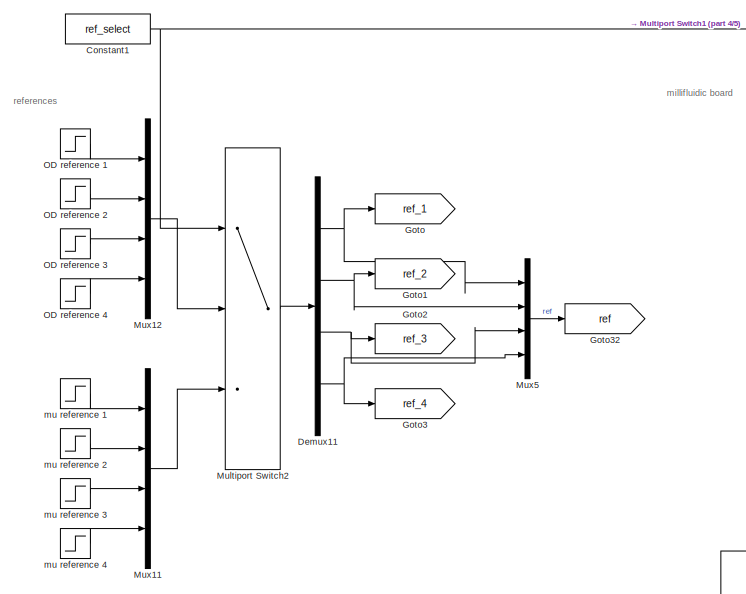
[diagram: root canvas - part 1/5, top left region]
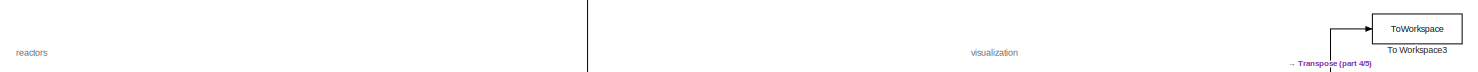
[diagram: root canvas - part 2/5, top right region]
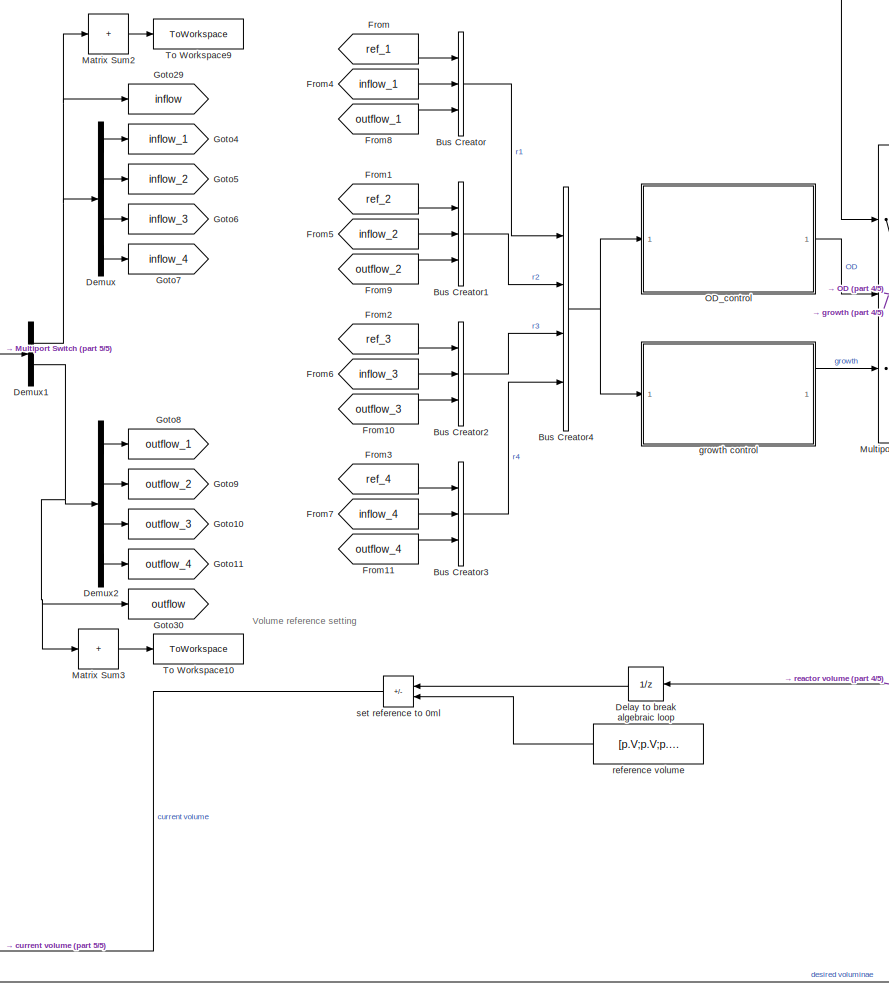
[diagram: root canvas - part 3/5, center side, full height]
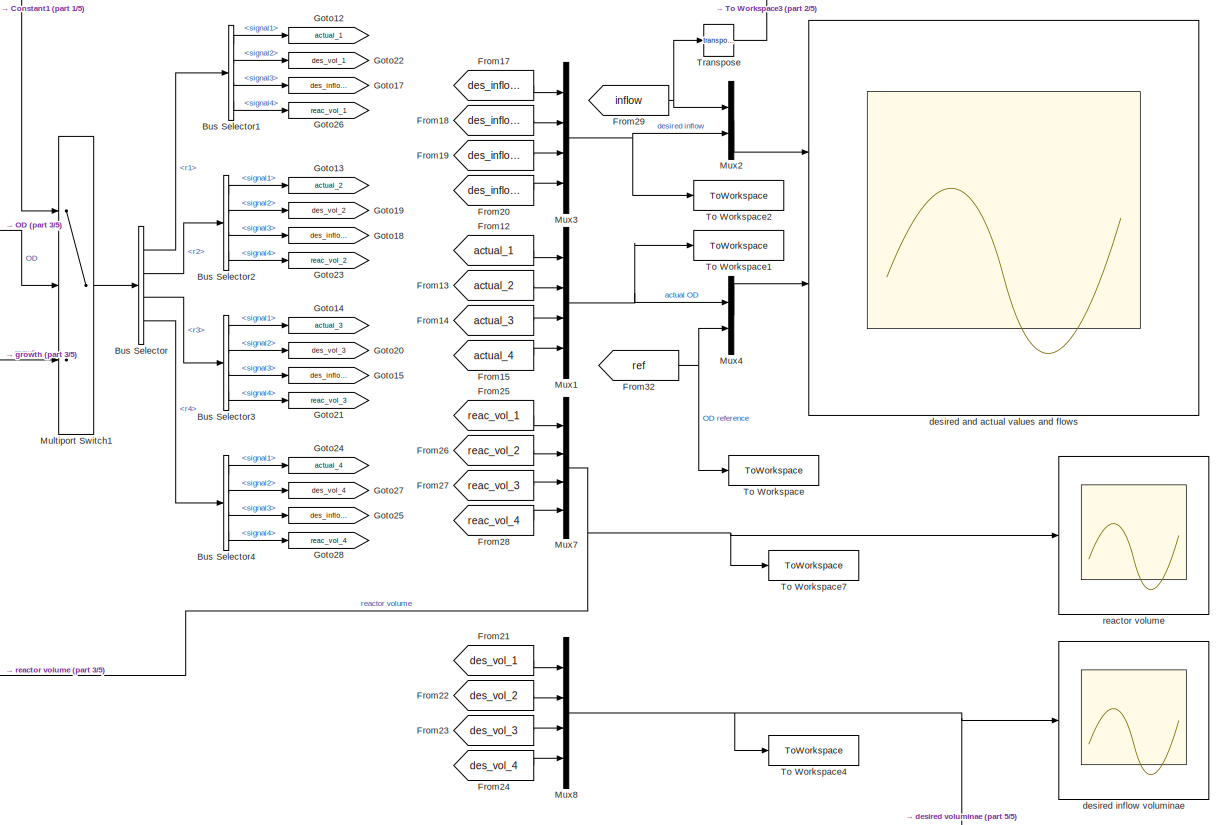
[diagram: root canvas - part 4/5, middle right region]
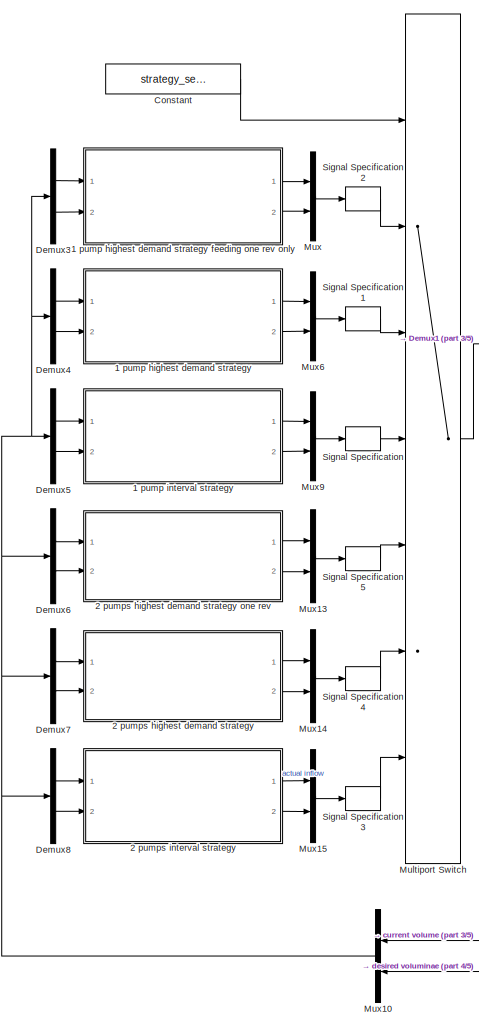
[diagram: root canvas - part 5/5, left side, full height]
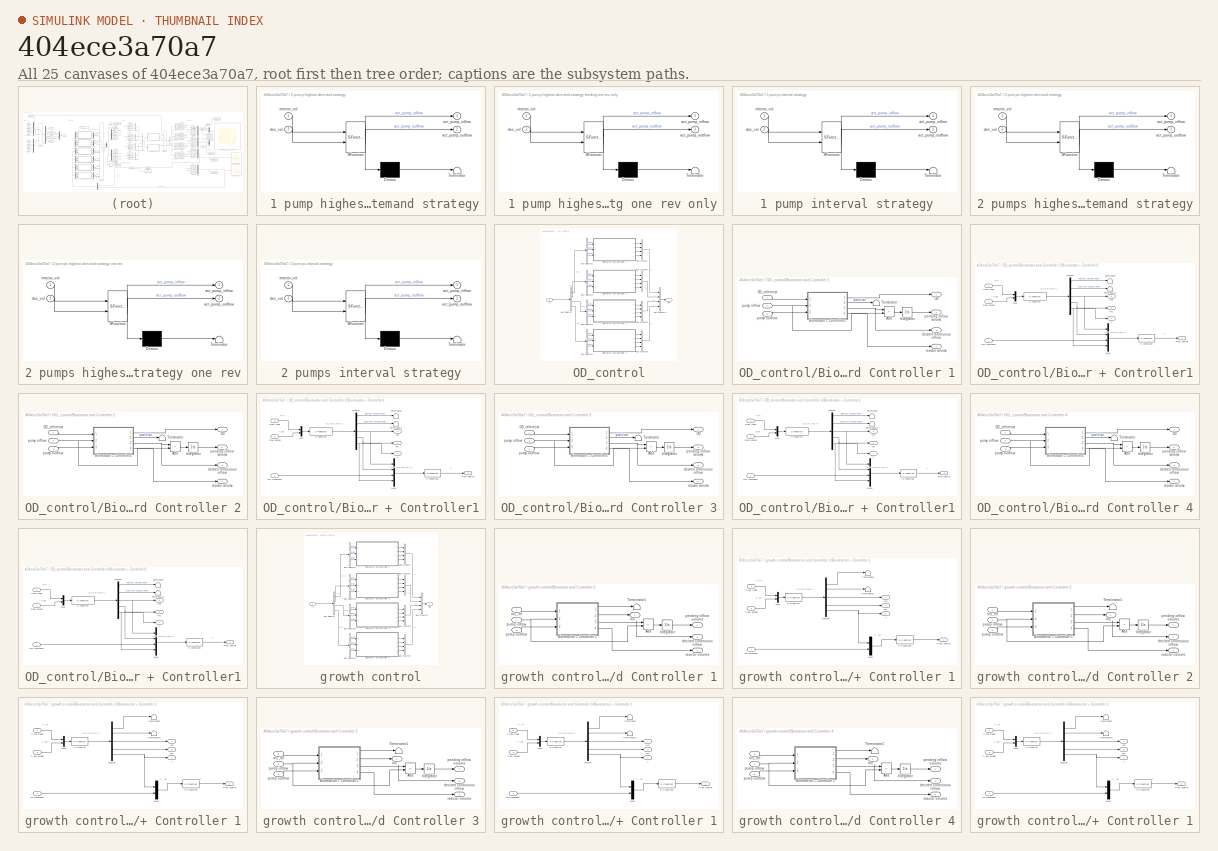
[diagram: thumbnail index - all 25 canvases of the model, root first then tree order]
MODEL slx_404ece3a70a7
KIND model
CONFIG AbsTol = 1e-6
CONFIG EnableMultiTasking = off
CONFIG FixedStep = 0.001
CONFIG MaxStep = 1
CONFIG MinStep = auto
CONFIG RelTol = 1e-3
CONFIG SampleTimeConstraint = Unconstrained
CONFIG SolverName = FixedStepAuto
CONFIG StartTime = 0.0
CONFIG StopTime = stoptime
BLOCK [SubSystem]  1 pump highest demand strategy
  ErrorFcn = Stateflow.Translate.translate
  PermitHierarchicalResolution = ExplicitOnly
  Ports = [2, 2]
  RequestExecContextInheritance = off
  SFBlockType = Chart
  TreatAsAtomicUnit = on
BLOCK [SubSystem]  1 pump highest demand strategy feeding one rev only
  ErrorFcn = Stateflow.Translate.translate
  PermitHierarchicalResolution = ExplicitOnly
  Ports = [2, 2]
  RequestExecContextInheritance = off
  SFBlockType = Chart
  TreatAsAtomicUnit = on
BLOCK [Demux]  1 pump highest demand strategy feeding one rev only/ Demux 
  Outputs = 1
  Ports = [1, 1]
BLOCK [S-Function]  1 pump highest demand strategy feeding one rev only/ SFunction 
  EnableBusSupport = on
  FunctionName = sf_sfun
  Parameters = p
  PortCounts = [2 3]
  Ports = [2, 3]
  SFcnIsStateOwnerBlock = off
  SFunctionDeploymentMode = off
  Tag = Stateflow S-Function 3
BLOCK [Terminator]  1 pump highest demand strategy feeding one rev only/ Terminator 
BLOCK [Outport]  1 pump highest demand strategy feeding one rev only/act_pump_inflow
BLOCK [Outport]  1 pump highest demand strategy feeding one rev only/act_pump_outflow
  Port = 2
BLOCK [Inport]  1 pump highest demand strategy feeding one rev only/des_vol
  Port = 2
BLOCK [Inport]  1 pump highest demand strategy feeding one rev only/reactor_vol
BLOCK [Demux]  1 pump highest demand strategy/ Demux 
  Outputs = 1
  Ports = [1, 1]
BLOCK [S-Function]  1 pump highest demand strategy/ SFunction 
  EnableBusSupport = on
  FunctionName = sf_sfun
  Parameters = p
  PortCounts = [2 3]
  Ports = [2, 3]
  SFcnIsStateOwnerBlock = off
  SFunctionDeploymentMode = off
  Tag = Stateflow S-Function 2
BLOCK [Terminator]  1 pump highest demand strategy/ Terminator 
BLOCK [Outport]  1 pump highest demand strategy/act_pump_inflow
BLOCK [Outport]  1 pump highest demand strategy/act_pump_outflow
  Port = 2
BLOCK [Inport]  1 pump highest demand strategy/des_vol
  Port = 2
BLOCK [Inport]  1 pump highest demand strategy/reactor_vol
BLOCK [SubSystem] 1 pump interval strategy
  ErrorFcn = Stateflow.Translate.translate
  PermitHierarchicalResolution = ExplicitOnly
  Ports = [2, 2]
  RequestExecContextInheritance = off
  SFBlockType = Chart
  TreatAsAtomicUnit = on
BLOCK [Demux] 1 pump interval strategy/ Demux 
  Outputs = 1
  Ports = [1, 1]
BLOCK [S-Function] 1 pump interval strategy/ SFunction 
  EnableBusSupport = on
  FunctionName = sf_sfun
  Parameters = p
  PortCounts = [2 3]
  Ports = [2, 3]
  SFcnIsStateOwnerBlock = off
  SFunctionDeploymentMode = off
  Tag = Stateflow S-Function 1
BLOCK [Terminator] 1 pump interval strategy/ Terminator 
BLOCK [Outport] 1 pump interval strategy/act_pump_inflow
BLOCK [Outport] 1 pump interval strategy/act_pump_outflow
  Port = 2
BLOCK [Inport] 1 pump interval strategy/des_vol
  Port = 2
BLOCK [Inport] 1 pump interval strategy/reactor_vol
BLOCK [SubSystem] 2 pumps highest demand strategy
  ErrorFcn = Stateflow.Translate.translate
  PermitHierarchicalResolution = ExplicitOnly
  Ports = [2, 2]
  RequestExecContextInheritance = off
  SFBlockType = Chart
  TreatAsAtomicUnit = on
BLOCK [SubSystem] 2 pumps highest demand strategy one rev
  ErrorFcn = Stateflow.Translate.translate
  PermitHierarchicalResolution = ExplicitOnly
  Ports = [2, 2]
  RequestExecContextInheritance = off
  SFBlockType = Chart
  TreatAsAtomicUnit = on
BLOCK [Demux] 2 pumps highest demand strategy one rev/ Demux 
  Outputs = 1
  Ports = [1, 1]
BLOCK [S-Function] 2 pumps highest demand strategy one rev/ SFunction 
  EnableBusSupport = on
  FunctionName = sf_sfun
  Parameters = p
  PortCounts = [2 3]
  Ports = [2, 3]
  SFcnIsStateOwnerBlock = off
  SFunctionDeploymentMode = off
  Tag = Stateflow S-Function 4
BLOCK [Terminator] 2 pumps highest demand strategy one rev/ Terminator 
BLOCK [Outport] 2 pumps highest demand strategy one rev/act_pump_inflow
BLOCK [Outport] 2 pumps highest demand strategy one rev/act_pump_outflow
  Port = 2
BLOCK [Inport] 2 pumps highest demand strategy one rev/des_vol
  Port = 2
BLOCK [Inport] 2 pumps highest demand strategy one rev/reactor_vol
BLOCK [Demux] 2 pumps highest demand strategy/ Demux 
  Outputs = 1
  Ports = [1, 1]
BLOCK [S-Function] 2 pumps highest demand strategy/ SFunction 
  EnableBusSupport = on
  FunctionName = sf_sfun
  Parameters = p
  PortCounts = [2 3]
  Ports = [2, 3]
  SFcnIsStateOwnerBlock = off
  SFunctionDeploymentMode = off
  Tag = Stateflow S-Function 5
BLOCK [Terminator] 2 pumps highest demand strategy/ Terminator 
BLOCK [Outport] 2 pumps highest demand strategy/act_pump_inflow
BLOCK [Outport] 2 pumps highest demand strategy/act_pump_outflow
  Port = 2
BLOCK [Inport] 2 pumps highest demand strategy/des_vol
  Port = 2
BLOCK [Inport] 2 pumps highest demand strategy/reactor_vol
BLOCK [SubSystem] 2 pumps interval strategy
  ErrorFcn = Stateflow.Translate.translate
  PermitHierarchicalResolution = ExplicitOnly
  Ports = [2, 2]
  RequestExecContextInheritance = off
  SFBlockType = Chart
  TreatAsAtomicUnit = on
BLOCK [Demux] 2 pumps interval strategy/ Demux 
  Outputs = 1
  Ports = [1, 1]
BLOCK [S-Function] 2 pumps interval strategy/ SFunction 
  EnableBusSupport = on
  FunctionName = sf_sfun
  Parameters = p
  PortCounts = [2 3]
  Ports = [2, 3]
  SFcnIsStateOwnerBlock = off
  SFunctionDeploymentMode = off
  Tag = Stateflow S-Function 6
BLOCK [Terminator] 2 pumps interval strategy/ Terminator 
BLOCK [Outport] 2 pumps interval strategy/act_pump_inflow
BLOCK [Outport] 2 pumps interval strategy/act_pump_outflow
  Port = 2
BLOCK [Inport] 2 pumps interval strategy/des_vol
  Port = 2
BLOCK [Inport] 2 pumps interval strategy/reactor_vol
BLOCK [BusCreator] Bus Creator
  DisplayOption = bar
  InheritFromInputs = on
  Inputs = 3
  Ports = [3, 1]
BLOCK [BusCreator] Bus Creator1
  DisplayOption = bar
  InheritFromInputs = on
  Inputs = 3
  Ports = [3, 1]
BLOCK [BusCreator] Bus Creator2
  DisplayOption = bar
  InheritFromInputs = on
  Inputs = 3
  Ports = [3, 1]
BLOCK [BusCreator] Bus Creator3
  DisplayOption = bar
  InheritFromInputs = on
  Inputs = 3
  Ports = [3, 1]
BLOCK [BusCreator] Bus Creator4
  DisplayOption = bar
  InheritFromInputs = on
  Inputs = 4
  Ports = [4, 1]
BLOCK [BusSelector] Bus Selector
  OutputSignals = r1,r2,r3,r4
  Ports = [1, 4]
BLOCK [BusSelector] Bus Selector1
  OutputSignals = signal1,signal2,signal3,signal4
  Ports = [1, 4]
BLOCK [BusSelector] Bus Selector2
  OutputSignals = signal1,signal2,signal3,signal4
  Ports = [1, 4]
BLOCK [BusSelector] Bus Selector3
  OutputSignals = signal1,signal2,signal3,signal4
  Ports = [1, 4]
BLOCK [BusSelector] Bus Selector4
  OutputSignals = signal1,signal2,signal3,signal4
  Ports = [1, 4]
BLOCK [Constant] Constant
  Value = strategy_select
BLOCK [Constant] Constant1
  Value = ref_select
BLOCK [UnitDelay] Delay to break algebraic loop
  HasFrameUpgradeWarning = on
  InitialCondition = [15; 15; 15; 15]
  NameLocation = top
  SampleTime = -1
BLOCK [Demux] Demux
  Ports = [1, 4]
BLOCK [Demux] Demux1
  Outputs = 2
  Ports = [1, 2]
BLOCK [Demux] Demux11
  Ports = [1, 4]
BLOCK [Demux] Demux2
  Ports = [1, 4]
BLOCK [Demux] Demux3
  Outputs = 2
  Ports = [1, 2]
BLOCK [Demux] Demux4
  Outputs = 2
  Ports = [1, 2]
BLOCK [Demux] Demux5
  Outputs = 2
  Ports = [1, 2]
BLOCK [Demux] Demux6
  Outputs = 2
  Ports = [1, 2]
BLOCK [Demux] Demux7
  Outputs = 2
  Ports = [1, 2]
BLOCK [Demux] Demux8
  Outputs = 2
  Ports = [1, 2]
BLOCK [From] From
  GotoTag = ref_1
BLOCK [From] From1
  GotoTag = ref_2
BLOCK [From] From10
  GotoTag = outflow_3
BLOCK [From] From11
  GotoTag = outflow_4
BLOCK [From] From12
  GotoTag = actual_1
BLOCK [From] From13
  GotoTag = actual_2
BLOCK [From] From14
  GotoTag = actual_3
BLOCK [From] From15
  GotoTag = actual_4
BLOCK [From] From17
  GotoTag = des_inflow_1
BLOCK [From] From18
  GotoTag = des_inflow_2
BLOCK [From] From19
  GotoTag = des_inflow_3
BLOCK [From] From2
  GotoTag = ref_3
BLOCK [From] From20
  GotoTag = des_inflow_4
BLOCK [From] From21
  GotoTag = des_vol_1
BLOCK [From] From22
  GotoTag = des_vol_2
BLOCK [From] From23
  GotoTag = des_vol_3
BLOCK [From] From24
  GotoTag = des_vol_4
BLOCK [From] From25
  GotoTag = reac_vol_1
BLOCK [From] From26
  GotoTag = reac_vol_2
BLOCK [From] From27
  GotoTag = reac_vol_3
BLOCK [From] From28
  GotoTag = reac_vol_4
BLOCK [From] From29
  GotoTag = inflow
BLOCK [From] From3
  GotoTag = ref_4
BLOCK [From] From32
  GotoTag = ref
BLOCK [From] From4
  GotoTag = inflow_1
BLOCK [From] From5
  GotoTag = inflow_2
BLOCK [From] From6
  GotoTag = inflow_3
BLOCK [From] From7
  GotoTag = inflow_4
BLOCK [From] From8
  GotoTag = outflow_1
BLOCK [From] From9
  GotoTag = outflow_2
BLOCK [Goto] Goto
  GotoTag = ref_1
BLOCK [Goto] Goto1
  GotoTag = ref_2
BLOCK [Goto] Goto10
  GotoTag = outflow_3
BLOCK [Goto] Goto11
  GotoTag = outflow_4
BLOCK [Goto] Goto12
  GotoTag = actual_1
BLOCK [Goto] Goto13
  GotoTag = actual_2
BLOCK [Goto] Goto14
  GotoTag = actual_3
BLOCK [Goto] Goto15
  GotoTag = des_inflow_3
BLOCK [Goto] Goto17
  GotoTag = des_inflow_1
BLOCK [Goto] Goto18
  GotoTag = des_inflow_2
BLOCK [Goto] Goto19
  GotoTag = des_vol_2
BLOCK [Goto] Goto2
  GotoTag = ref_3
BLOCK [Goto] Goto20
  GotoTag = des_vol_3
BLOCK [Goto] Goto21
  GotoTag = reac_vol_3
BLOCK [Goto] Goto22
  GotoTag = des_vol_1
BLOCK [Goto] Goto23
  GotoTag = reac_vol_2
BLOCK [Goto] Goto24
  GotoTag = actual_4
BLOCK [Goto] Goto25
  GotoTag = des_inflow_4
BLOCK [Goto] Goto26
  GotoTag = reac_vol_1
BLOCK [Goto] Goto27
  GotoTag = des_vol_4
BLOCK [Goto] Goto28
  GotoTag = reac_vol_4
BLOCK [Goto] Goto29
  GotoTag = inflow
BLOCK [Goto] Goto3
  GotoTag = ref_4
BLOCK [Goto] Goto30
  GotoTag = outflow
BLOCK [Goto] Goto32
  GotoTag = ref
BLOCK [Goto] Goto4
  GotoTag = inflow_1
BLOCK [Goto] Goto5
  GotoTag = inflow_2
BLOCK [Goto] Goto6
  GotoTag = inflow_3
BLOCK [Goto] Goto7
  GotoTag = inflow_4
BLOCK [Goto] Goto8
  GotoTag = outflow_1
BLOCK [Goto] Goto9
  GotoTag = outflow_2
BLOCK [Sum] Matrix Sum2
  IconShape = rectangular
  Inputs = +
  Ports = [1, 1]
BLOCK [Sum] Matrix Sum3
  IconShape = rectangular
  Inputs = +
  Ports = [1, 1]
BLOCK [MultiPortSwitch] Multiport Switch
  InputSameDT = off
  Inputs = 6
  Ports = [7, 1]
  SaturateOnIntegerOverflow = off
BLOCK [MultiPortSwitch] Multiport Switch1
  InputSameDT = off
  Inputs = 2
  Ports = [3, 1]
  SaturateOnIntegerOverflow = off
BLOCK [MultiPortSwitch] Multiport Switch2
  InputSameDT = off
  Inputs = 2
  Ports = [3, 1]
  SaturateOnIntegerOverflow = off
BLOCK [Mux] Mux
  DisplayOption = bar
  Inputs = 2
  Ports = [2, 1]
BLOCK [Mux] Mux1
  DisplayOption = bar
  Ports = [4, 1]
BLOCK [Mux] Mux10
  DisplayOption = bar
  Inputs = 2
  NameLocation = top
  Ports = [2, 1]
BLOCK [Mux] Mux11
  DisplayOption = bar
  Ports = [4, 1]
BLOCK [Mux] Mux12
  DisplayOption = bar
  Ports = [4, 1]
BLOCK [Mux] Mux13
  DisplayOption = bar
  Inputs = 2
  Ports = [2, 1]
BLOCK [Mux] Mux14
  DisplayOption = bar
  Inputs = 2
  Ports = [2, 1]
BLOCK [Mux] Mux15
  DisplayOption = bar
  Inputs = 2
  Ports = [2, 1]
BLOCK [Mux] Mux2
  DisplayOption = bar
  Inputs = 2
  Ports = [2, 1]
BLOCK [Mux] Mux3
  DisplayOption = bar
  Ports = [4, 1]
BLOCK [Mux] Mux4
  DisplayOption = bar
  Inputs = 2
  Ports = [2, 1]
BLOCK [Mux] Mux5
  DisplayOption = bar
  Ports = [4, 1]
BLOCK [Mux] Mux6
  DisplayOption = bar
  Inputs = 2
  Ports = [2, 1]
BLOCK [Mux] Mux7
  DisplayOption = bar
  Ports = [4, 1]
BLOCK [Mux] Mux8
  DisplayOption = bar
  Ports = [4, 1]
BLOCK [Mux] Mux9
  DisplayOption = bar
  Inputs = 2
  Ports = [2, 1]
BLOCK [Step] OD reference 1
  After = p.r1_OD.final_val
  Before = p.r1_OD.init_val
  SampleTime = 0
  Time = p.r1_OD.step_time
BLOCK [Step] OD reference 2
  After = p.r2_OD.final_val
  Before = p.r2_OD.init_val
  SampleTime = 0
  Time = p.r2_OD.step_time
BLOCK [Step] OD reference 3
  After = p.r3_OD.final_val
  Before = p.r3_OD.init_val
  SampleTime = 0
  Time = p.r3_OD.step_time
BLOCK [Step] OD reference 4
  After = p.r4_OD.final_val
  Before = p.r4_OD.init_val
  SampleTime = 0
  Time = p.r4_OD.step_time
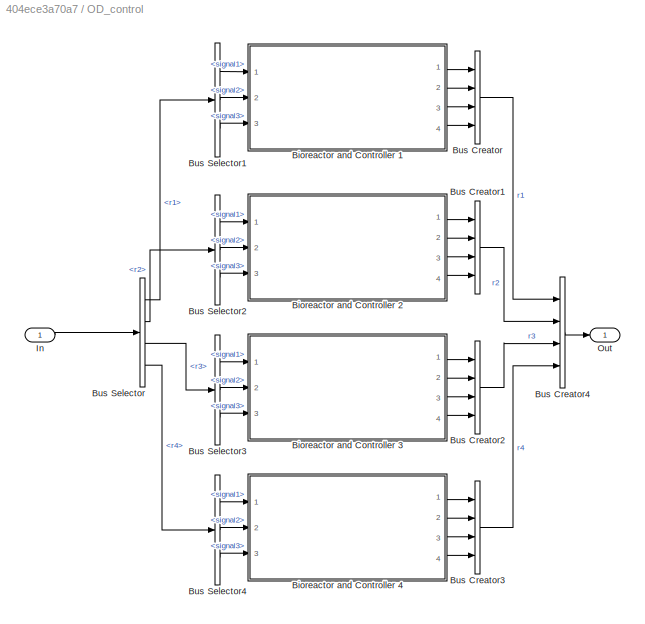
BLOCK [SubSystem] OD_control
  Ports = [1, 1]
  RequestExecContextInheritance = off
BLOCK [SubSystem] OD_control/Bioreactor and Controller 1
  Ports = [3, 4]
  RequestExecContextInheritance = off
BLOCK [Sum] OD_control/Bioreactor and Controller 1/Add
  IconShape = rectangular
  Inputs = +-
  Ports = [2, 1]
BLOCK [SubSystem] OD_control/Bioreactor and Controller 1/Biorreactor + Controller1
  Ports = [3, 4]
  RequestExecContextInheritance = off
BLOCK [Demux] OD_control/Bioreactor and Controller 1/Biorreactor + Controller1/Demux
  Outputs = 5
  Ports = [1, 5]
BLOCK [Outport] OD_control/Bioreactor and Controller 1/Biorreactor + Controller1/Flow control
  Port = 3
BLOCK [Inport] OD_control/Bioreactor and Controller 1/Biorreactor + Controller1/Flow input
  Port = 2
BLOCK [Inport] OD_control/Bioreactor and Controller 1/Biorreactor + Controller1/Flow output
  Port = 3
BLOCK [Mux] OD_control/Bioreactor and Controller 1/Biorreactor + Controller1/Mux
  DisplayOption = bar
  Inputs = 2
  Ports = [2, 1]
BLOCK [Mux] OD_control/Bioreactor and Controller 1/Biorreactor + Controller1/Mux1
  DisplayOption = bar
  Ports = [4, 1]
BLOCK [Outport] OD_control/Bioreactor and Controller 1/Biorreactor + Controller1/OD
BLOCK [Inport] OD_control/Bioreactor and Controller 1/Biorreactor + Controller1/OD reference
BLOCK [S-Function] OD_control/Bioreactor and Controller 1/Biorreactor + Controller1/S-Function
  EnableBusSupport = off
  FunctionName = biorreactor_vol
  Parameters = [0.1 16 15],p
  Ports = [1, 1]
  SFcnIsStateOwnerBlock = off
  SFunctionDeploymentMode = off
BLOCK [S-Function] OD_control/Bioreactor and Controller 1/Biorreactor + Controller1/S-Function1
  EnableBusSupport = off
  FunctionName = controller_2
  Parameters = p
  Ports = [1, 1]
  SFcnIsStateOwnerBlock = off
  SFunctionDeploymentMode = off
BLOCK [Terminator] OD_control/Bioreactor and Controller 1/Biorreactor + Controller1/Terminator
BLOCK [Terminator] OD_control/Bioreactor and Controller 1/Biorreactor + Controller1/Terminator1
BLOCK [Outport] OD_control/Bioreactor and Controller 1/Biorreactor + Controller1/V
  Port = 4
BLOCK [Outport] OD_control/Bioreactor and Controller 1/Biorreactor + Controller1/mu
  Port = 2
BLOCK [Integrator] OD_control/Bioreactor and Controller 1/Integrator
  Ports = [1, 1]
BLOCK [Outport] OD_control/Bioreactor and Controller 1/OD
BLOCK [Inport] OD_control/Bioreactor and Controller 1/OD_reference
BLOCK [Terminator] OD_control/Bioreactor and Controller 1/Terminator
BLOCK [Outport] OD_control/Bioreactor and Controller 1/desired continuous inflow
  Port = 3
BLOCK [Outport] OD_control/Bioreactor and Controller 1/pending inflow volume
  Port = 2
BLOCK [Inport] OD_control/Bioreactor and Controller 1/pump inflow
  Port = 2
BLOCK [Inport] OD_control/Bioreactor and Controller 1/pump outflow
  Port = 3
BLOCK [Outport] OD_control/Bioreactor and Controller 1/reactor volume
  Port = 4
BLOCK [SubSystem] OD_control/Bioreactor and Controller 2
  Ports = [3, 4]
  RequestExecContextInheritance = off
BLOCK [Sum] OD_control/Bioreactor and Controller 2/Add
  IconShape = rectangular
  Inputs = +-
  Ports = [2, 1]
BLOCK [SubSystem] OD_control/Bioreactor and Controller 2/Biorreactor + Controller1
  Ports = [3, 4]
  RequestExecContextInheritance = off
BLOCK [Demux] OD_control/Bioreactor and Controller 2/Biorreactor + Controller1/Demux
  Outputs = 5
  Ports = [1, 5]
BLOCK [Outport] OD_control/Bioreactor and Controller 2/Biorreactor + Controller1/Flow control
  Port = 3
BLOCK [Inport] OD_control/Bioreactor and Controller 2/Biorreactor + Controller1/Flow input
  Port = 2
BLOCK [Inport] OD_control/Bioreactor and Controller 2/Biorreactor + Controller1/Flow output
  Port = 3
BLOCK [Mux] OD_control/Bioreactor and Controller 2/Biorreactor + Controller1/Mux
  DisplayOption = bar
  Inputs = 2
  Ports = [2, 1]
BLOCK [Mux] OD_control/Bioreactor and Controller 2/Biorreactor + Controller1/Mux1
  DisplayOption = bar
  Ports = [4, 1]
BLOCK [Outport] OD_control/Bioreactor and Controller 2/Biorreactor + Controller1/OD
BLOCK [Inport] OD_control/Bioreactor and Controller 2/Biorreactor + Controller1/OD reference
BLOCK [S-Function] OD_control/Bioreactor and Controller 2/Biorreactor + Controller1/S-Function
  EnableBusSupport = off
  FunctionName = biorreactor_vol
  Parameters = [0.1 16 15],p
  Ports = [1, 1]
  SFcnIsStateOwnerBlock = off
  SFunctionDeploymentMode = off
BLOCK [S-Function] OD_control/Bioreactor and Controller 2/Biorreactor + Controller1/S-Function1
  EnableBusSupport = off
  FunctionName = controller_2
  Parameters = p
  Ports = [1, 1]
  SFcnIsStateOwnerBlock = off
  SFunctionDeploymentMode = off
BLOCK [Terminator] OD_control/Bioreactor and Controller 2/Biorreactor + Controller1/Terminator
BLOCK [Terminator] OD_control/Bioreactor and Controller 2/Biorreactor + Controller1/Terminator1
BLOCK [Outport] OD_control/Bioreactor and Controller 2/Biorreactor + Controller1/V
  Port = 4
BLOCK [Outport] OD_control/Bioreactor and Controller 2/Biorreactor + Controller1/mu
  Port = 2
BLOCK [Integrator] OD_control/Bioreactor and Controller 2/Integrator
  Ports = [1, 1]
BLOCK [Outport] OD_control/Bioreactor and Controller 2/OD
BLOCK [Inport] OD_control/Bioreactor and Controller 2/OD_reference
BLOCK [Terminator] OD_control/Bioreactor and Controller 2/Terminator
BLOCK [Outport] OD_control/Bioreactor and Controller 2/desired continuous inflow
  Port = 3
BLOCK [Outport] OD_control/Bioreactor and Controller 2/pending inflow volume
  Port = 2
BLOCK [Inport] OD_control/Bioreactor and Controller 2/pump inflow
  Port = 2
BLOCK [Inport] OD_control/Bioreactor and Controller 2/pump outflow
  Port = 3
BLOCK [Outport] OD_control/Bioreactor and Controller 2/reactor volume
  Port = 4
BLOCK [SubSystem] OD_control/Bioreactor and Controller 3
  Ports = [3, 4]
  RequestExecContextInheritance = off
BLOCK [Sum] OD_control/Bioreactor and Controller 3/Add
  IconShape = rectangular
  Inputs = +-
  Ports = [2, 1]
BLOCK [SubSystem] OD_control/Bioreactor and Controller 3/Biorreactor + Controller1
  Ports = [3, 4]
  RequestExecContextInheritance = off
BLOCK [Demux] OD_control/Bioreactor and Controller 3/Biorreactor + Controller1/Demux
  Outputs = 5
  Ports = [1, 5]
BLOCK [Outport] OD_control/Bioreactor and Controller 3/Biorreactor + Controller1/Flow control
  Port = 3
BLOCK [Inport] OD_control/Bioreactor and Controller 3/Biorreactor + Controller1/Flow input
  Port = 2
BLOCK [Inport] OD_control/Bioreactor and Controller 3/Biorreactor + Controller1/Flow output
  Port = 3
BLOCK [Mux] OD_control/Bioreactor and Controller 3/Biorreactor + Controller1/Mux
  DisplayOption = bar
  Inputs = 2
  Ports = [2, 1]
BLOCK [Mux] OD_control/Bioreactor and Controller 3/Biorreactor + Controller1/Mux1
  DisplayOption = bar
  Ports = [4, 1]
BLOCK [Outport] OD_control/Bioreactor and Controller 3/Biorreactor + Controller1/OD
BLOCK [Inport] OD_control/Bioreactor and Controller 3/Biorreactor + Controller1/OD reference
BLOCK [S-Function] OD_control/Bioreactor and Controller 3/Biorreactor + Controller1/S-Function
  EnableBusSupport = off
  FunctionName = biorreactor_vol
  Parameters = [0.1 16 15],p
  Ports = [1, 1]
  SFcnIsStateOwnerBlock = off
  SFunctionDeploymentMode = off
BLOCK [S-Function] OD_control/Bioreactor and Controller 3/Biorreactor + Controller1/S-Function1
  EnableBusSupport = off
  FunctionName = controller_2
  Parameters = p
  Ports = [1, 1]
  SFcnIsStateOwnerBlock = off
  SFunctionDeploymentMode = off
BLOCK [Terminator] OD_control/Bioreactor and Controller 3/Biorreactor + Controller1/Terminator
BLOCK [Terminator] OD_control/Bioreactor and Controller 3/Biorreactor + Controller1/Terminator1
BLOCK [Outport] OD_control/Bioreactor and Controller 3/Biorreactor + Controller1/V
  Port = 4
BLOCK [Outport] OD_control/Bioreactor and Controller 3/Biorreactor + Controller1/mu
  Port = 2
BLOCK [Integrator] OD_control/Bioreactor and Controller 3/Integrator
  Ports = [1, 1]
BLOCK [Outport] OD_control/Bioreactor and Controller 3/OD
BLOCK [Inport] OD_control/Bioreactor and Controller 3/OD_reference
BLOCK [Terminator] OD_control/Bioreactor and Controller 3/Terminator
BLOCK [Outport] OD_control/Bioreactor and Controller 3/desired continuous inflow
  Port = 3
BLOCK [Outport] OD_control/Bioreactor and Controller 3/pending inflow volume
  Port = 2
BLOCK [Inport] OD_control/Bioreactor and Controller 3/pump inflow
  Port = 2
BLOCK [Inport] OD_control/Bioreactor and Controller 3/pump outflow
  Port = 3
BLOCK [Outport] OD_control/Bioreactor and Controller 3/reactor volume
  Port = 4
BLOCK [SubSystem] OD_control/Bioreactor and Controller 4
  Ports = [3, 4]
  RequestExecContextInheritance = off
BLOCK [Sum] OD_control/Bioreactor and Controller 4/Add
  IconShape = rectangular
  Inputs = +-
  Ports = [2, 1]
BLOCK [SubSystem] OD_control/Bioreactor and Controller 4/Biorreactor + Controller1
  Ports = [3, 4]
  RequestExecContextInheritance = off
BLOCK [Demux] OD_control/Bioreactor and Controller 4/Biorreactor + Controller1/Demux
  Outputs = 5
  Ports = [1, 5]
BLOCK [Outport] OD_control/Bioreactor and Controller 4/Biorreactor + Controller1/Flow control
  Port = 3
BLOCK [Inport] OD_control/Bioreactor and Controller 4/Biorreactor + Controller1/Flow input
  Port = 2
BLOCK [Inport] OD_control/Bioreactor and Controller 4/Biorreactor + Controller1/Flow output
  Port = 3
BLOCK [Mux] OD_control/Bioreactor and Controller 4/Biorreactor + Controller1/Mux
  DisplayOption = bar
  Inputs = 2
  Ports = [2, 1]
BLOCK [Mux] OD_control/Bioreactor and Controller 4/Biorreactor + Controller1/Mux1
  DisplayOption = bar
  Ports = [4, 1]
BLOCK [Outport] OD_control/Bioreactor and Controller 4/Biorreactor + Controller1/OD
BLOCK [Inport] OD_control/Bioreactor and Controller 4/Biorreactor + Controller1/OD reference
BLOCK [S-Function] OD_control/Bioreactor and Controller 4/Biorreactor + Controller1/S-Function
  EnableBusSupport = off
  FunctionName = biorreactor_vol
  Parameters = [0.1 16 15],p
  Ports = [1, 1]
  SFcnIsStateOwnerBlock = off
  SFunctionDeploymentMode = off
BLOCK [S-Function] OD_control/Bioreactor and Controller 4/Biorreactor + Controller1/S-Function1
  EnableBusSupport = off
  FunctionName = controller_2
  Parameters = p
  Ports = [1, 1]
  SFcnIsStateOwnerBlock = off
  SFunctionDeploymentMode = off
BLOCK [Terminator] OD_control/Bioreactor and Controller 4/Biorreactor + Controller1/Terminator
BLOCK [Terminator] OD_control/Bioreactor and Controller 4/Biorreactor + Controller1/Terminator1
BLOCK [Outport] OD_control/Bioreactor and Controller 4/Biorreactor + Controller1/V
  Port = 4
BLOCK [Outport] OD_control/Bioreactor and Controller 4/Biorreactor + Controller1/mu
  Port = 2
BLOCK [Integrator] OD_control/Bioreactor and Controller 4/Integrator
  Ports = [1, 1]
BLOCK [Outport] OD_control/Bioreactor and Controller 4/OD
BLOCK [Inport] OD_control/Bioreactor and Controller 4/OD_reference
BLOCK [Terminator] OD_control/Bioreactor and Controller 4/Terminator
BLOCK [Outport] OD_control/Bioreactor and Controller 4/desired continuous inflow
  Port = 3
BLOCK [Outport] OD_control/Bioreactor and Controller 4/pending inflow volume
  Port = 2
BLOCK [Inport] OD_control/Bioreactor and Controller 4/pump inflow
  Port = 2
BLOCK [Inport] OD_control/Bioreactor and Controller 4/pump outflow
  Port = 3
BLOCK [Outport] OD_control/Bioreactor and Controller 4/reactor volume
  Port = 4
BLOCK [BusCreator] OD_control/Bus Creator
  DisplayOption = bar
  InheritFromInputs = on
  Inputs = 4
  Ports = [4, 1]
BLOCK [BusCreator] OD_control/Bus Creator1
  DisplayOption = bar
  InheritFromInputs = on
  Inputs = 4
  Ports = [4, 1]
BLOCK [BusCreator] OD_control/Bus Creator2
  DisplayOption = bar
  InheritFromInputs = on
  Inputs = 4
  Ports = [4, 1]
BLOCK [BusCreator] OD_control/Bus Creator3
  DisplayOption = bar
  InheritFromInputs = on
  Inputs = 4
  Ports = [4, 1]
BLOCK [BusCreator] OD_control/Bus Creator4
  DisplayOption = bar
  InheritFromInputs = on
  Inputs = 4
  Ports = [4, 1]
BLOCK [BusSelector] OD_control/Bus Selector
  OutputSignals = r1,r2,r3,r4
  Ports = [1, 4]
BLOCK [BusSelector] OD_control/Bus Selector1
  OutputSignals = signal1,signal2,signal3
  Ports = [1, 3]
BLOCK [BusSelector] OD_control/Bus Selector2
  OutputSignals = signal1,signal2,signal3
  Ports = [1, 3]
BLOCK [BusSelector] OD_control/Bus Selector3
  OutputSignals = signal1,signal2,signal3
  Ports = [1, 3]
BLOCK [BusSelector] OD_control/Bus Selector4
  OutputSignals = signal1,signal2,signal3
  Ports = [1, 3]
BLOCK [Inport] OD_control/In
BLOCK [Outport] OD_control/Out
BLOCK [SignalSpecification] Signal Specification
  Dimensions = [8 1]
BLOCK [SignalSpecification] Signal Specification1
  Dimensions = [8 1]
BLOCK [SignalSpecification] Signal Specification2
  Dimensions = [8 1]
BLOCK [SignalSpecification] Signal Specification3
  Dimensions = [8 1]
BLOCK [SignalSpecification] Signal Specification4
  Dimensions = [8 1]
BLOCK [SignalSpecification] Signal Specification5
  Dimensions = [8 1]
BLOCK [ToWorkspace] To Workspace
  FixptAsFi = on
  MaxDataPoints = inf
  Ports = [1]
  SampleTime = -1
  VariableName = reference
BLOCK [ToWorkspace] To Workspace1
  FixptAsFi = on
  MaxDataPoints = inf
  Ports = [1]
  SampleTime = -1
  VariableName = actual
BLOCK [ToWorkspace] To Workspace10
  FixptAsFi = on
  MaxDataPoints = inf
  Ports = [1]
  SampleTime = -1
  Save2DSignal = 2-D array (concatenate along first dimension)
  VariableName = pump_outflow
BLOCK [ToWorkspace] To Workspace2
  FixptAsFi = on
  MaxDataPoints = inf
  Ports = [1]
  SampleTime = -1
  VariableName = desired_flow
BLOCK [ToWorkspace] To Workspace3
  FixptAsFi = on
  MaxDataPoints = inf
  Ports = [1]
  SampleTime = -1
  Save2DSignal = 2-D array (concatenate along first dimension)
  VariableName = actual_inflow
BLOCK [ToWorkspace] To Workspace4
  FixptAsFi = on
  MaxDataPoints = inf
  Ports = [1]
  SampleTime = -1
  VariableName = des_vol
BLOCK [ToWorkspace] To Workspace7
  FixptAsFi = on
  MaxDataPoints = inf
  Ports = [1]
  SampleTime = -1
  VariableName = reac_vol
BLOCK [ToWorkspace] To Workspace9
  FixptAsFi = on
  MaxDataPoints = inf
  Ports = [1]
  SampleTime = -1
  Save2DSignal = 2-D array (concatenate along first dimension)
  VariableName = pump_inflow
BLOCK [Math] Transpose
  Operator = transpose
  Ports = [1, 1]
BLOCK [Scope] desired and actual values and flows
  Floating = off
  NumInputPorts = 2
  Ports = [2]
  ScopeSpecificationString = Simulink.scopes.TimeScopeBlockCfg('CurrentConfiguration', extmgr.ConfigurationSet(extmgr.Configuration('Core','General UI',true),extmgr.Configuration('Core','Source UI',true),extmgr.Configuration('Sources','WiredSimulink',true,'DataLoggingVariableName','ScopeData1'),extmgr.Configuration('Visuals','Time Domain',true,'SerializedDisplays',{struct('MinYLimReal','-4.5','MaxYLimReal','40.5','YLabelReal'...<+2435ch>
BLOCK [Scope] desired inflow voluminae
  Floating = off
  NumInputPorts = 1
  Ports = [1]
  ScopeSpecificationString = Simulink.scopes.TimeScopeBlockCfg('CurrentConfiguration', extmgr.ConfigurationSet(extmgr.Configuration('Core','General UI',true),extmgr.Configuration('Core','Source UI',true),extmgr.Configuration('Sources','WiredSimulink',true,'DataLoggingVariableName','ScopeData2'),extmgr.Configuration('Visuals','Time Domain',true,'SerializedDisplays',{struct('MinYLimReal','-0.02483','MaxYLimReal','0.2235','YLabe...<+1575ch>
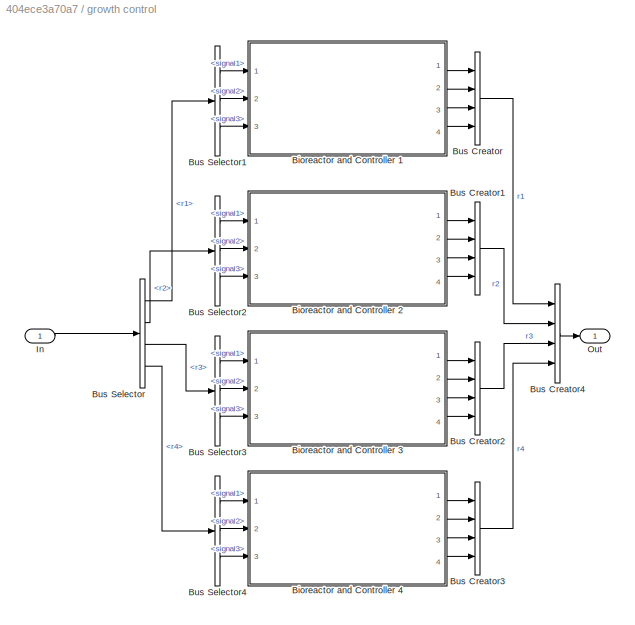
BLOCK [SubSystem] growth control
  Ports = [1, 1]
  RequestExecContextInheritance = off
BLOCK [SubSystem] growth control/Bioreactor and Controller 1
  Ports = [3, 4]
  RequestExecContextInheritance = off
BLOCK [Sum] growth control/Bioreactor and Controller 1/Add
  IconShape = rectangular
  Inputs = +-
  Ports = [2, 1]
BLOCK [SubSystem] growth control/Bioreactor and Controller 1/Biorreactor + Controller 1
  Ports = [3, 4]
  RequestExecContextInheritance = off
BLOCK [Demux] growth control/Bioreactor and Controller 1/Biorreactor + Controller 1/Demux
  Outputs = 5
  Ports = [1, 5]
BLOCK [Outport] growth control/Bioreactor and Controller 1/Biorreactor + Controller 1/Flow control
  Port = 3
BLOCK [Inport] growth control/Bioreactor and Controller 1/Biorreactor + Controller 1/Flow input
  Port = 2
BLOCK [Inport] growth control/Bioreactor and Controller 1/Biorreactor + Controller 1/Flow output
  Port = 3
BLOCK [Mux] growth control/Bioreactor and Controller 1/Biorreactor + Controller 1/Mux
  DisplayOption = bar
  Inputs = 2
  Ports = [2, 1]
BLOCK [Mux] growth control/Bioreactor and Controller 1/Biorreactor + Controller 1/Mux1
  DisplayOption = bar
  Inputs = 2
  Ports = [2, 1]
BLOCK [Outport] growth control/Bioreactor and Controller 1/Biorreactor + Controller 1/OD
BLOCK [S-Function] growth control/Bioreactor and Controller 1/Biorreactor + Controller 1/S-Function
  EnableBusSupport = off
  FunctionName = biorreactor_vol
  Parameters = [0.1 16 15],p
  Ports = [1, 1]
  SFcnIsStateOwnerBlock = off
  SFunctionDeploymentMode = off
BLOCK [S-Function] growth control/Bioreactor and Controller 1/Biorreactor + Controller 1/S-Function1
  EnableBusSupport = off
  FunctionName = controllerGrowth_2
  Parameters = p
  Ports = [1, 1]
  SFcnIsStateOwnerBlock = off
  SFunctionDeploymentMode = off
BLOCK [Terminator] growth control/Bioreactor and Controller 1/Biorreactor + Controller 1/Terminator
BLOCK [Terminator] growth control/Bioreactor and Controller 1/Biorreactor + Controller 1/Terminator1
BLOCK [Outport] growth control/Bioreactor and Controller 1/Biorreactor + Controller 1/V
  Port = 4
BLOCK [Outport] growth control/Bioreactor and Controller 1/Biorreactor + Controller 1/mu
  Port = 2
BLOCK [Inport] growth control/Bioreactor and Controller 1/Biorreactor + Controller 1/mu reference
BLOCK [Integrator] growth control/Bioreactor and Controller 1/Integrator
  Ports = [1, 1]
BLOCK [Terminator] growth control/Bioreactor and Controller 1/Terminator1
BLOCK [Outport] growth control/Bioreactor and Controller 1/desired continuous inflow
  Port = 3
BLOCK [Outport] growth control/Bioreactor and Controller 1/mu
BLOCK [Inport] growth control/Bioreactor and Controller 1/mu_ref
BLOCK [Outport] growth control/Bioreactor and Controller 1/pending inflow volume
  Port = 2
BLOCK [Inport] growth control/Bioreactor and Controller 1/pump inflow
  Port = 2
BLOCK [Inport] growth control/Bioreactor and Controller 1/pump outflow
  Port = 3
BLOCK [Outport] growth control/Bioreactor and Controller 1/reactor volume
  Port = 4
BLOCK [SubSystem] growth control/Bioreactor and Controller 2
  Ports = [3, 4]
  RequestExecContextInheritance = off
BLOCK [Sum] growth control/Bioreactor and Controller 2/Add
  IconShape = rectangular
  Inputs = +-
  Ports = [2, 1]
BLOCK [SubSystem] growth control/Bioreactor and Controller 2/Biorreactor + Controller 1
  Ports = [3, 4]
  RequestExecContextInheritance = off
BLOCK [Demux] growth control/Bioreactor and Controller 2/Biorreactor + Controller 1/Demux
  Outputs = 5
  Ports = [1, 5]
BLOCK [Outport] growth control/Bioreactor and Controller 2/Biorreactor + Controller 1/Flow control
  Port = 3
BLOCK [Inport] growth control/Bioreactor and Controller 2/Biorreactor + Controller 1/Flow input
  Port = 2
BLOCK [Inport] growth control/Bioreactor and Controller 2/Biorreactor + Controller 1/Flow output
  Port = 3
BLOCK [Mux] growth control/Bioreactor and Controller 2/Biorreactor + Controller 1/Mux
  DisplayOption = bar
  Inputs = 2
  Ports = [2, 1]
BLOCK [Mux] growth control/Bioreactor and Controller 2/Biorreactor + Controller 1/Mux1
  DisplayOption = bar
  Inputs = 2
  Ports = [2, 1]
BLOCK [Outport] growth control/Bioreactor and Controller 2/Biorreactor + Controller 1/OD
BLOCK [S-Function] growth control/Bioreactor and Controller 2/Biorreactor + Controller 1/S-Function
  EnableBusSupport = off
  FunctionName = biorreactor_vol
  Parameters = [0.1 16 15],p
  Ports = [1, 1]
  SFcnIsStateOwnerBlock = off
  SFunctionDeploymentMode = off
BLOCK [S-Function] growth control/Bioreactor and Controller 2/Biorreactor + Controller 1/S-Function1
  EnableBusSupport = off
  FunctionName = controllerGrowth_2
  Parameters = p
  Ports = [1, 1]
  SFcnIsStateOwnerBlock = off
  SFunctionDeploymentMode = off
BLOCK [Terminator] growth control/Bioreactor and Controller 2/Biorreactor + Controller 1/Terminator
BLOCK [Terminator] growth control/Bioreactor and Controller 2/Biorreactor + Controller 1/Terminator1
BLOCK [Outport] growth control/Bioreactor and Controller 2/Biorreactor + Controller 1/V
  Port = 4
BLOCK [Outport] growth control/Bioreactor and Controller 2/Biorreactor + Controller 1/mu
  Port = 2
BLOCK [Inport] growth control/Bioreactor and Controller 2/Biorreactor + Controller 1/mu reference
BLOCK [Integrator] growth control/Bioreactor and Controller 2/Integrator
  Ports = [1, 1]
BLOCK [Terminator] growth control/Bioreactor and Controller 2/Terminator1
BLOCK [Outport] growth control/Bioreactor and Controller 2/desired continuous inflow
  Port = 3
BLOCK [Outport] growth control/Bioreactor and Controller 2/mu
BLOCK [Inport] growth control/Bioreactor and Controller 2/mu_ref
BLOCK [Outport] growth control/Bioreactor and Controller 2/pending inflow volume
  Port = 2
BLOCK [Inport] growth control/Bioreactor and Controller 2/pump inflow
  Port = 2
BLOCK [Inport] growth control/Bioreactor and Controller 2/pump outflow
  Port = 3
BLOCK [Outport] growth control/Bioreactor and Controller 2/reactor volume
  Port = 4
BLOCK [SubSystem] growth control/Bioreactor and Controller 3
  Ports = [3, 4]
  RequestExecContextInheritance = off
BLOCK [Sum] growth control/Bioreactor and Controller 3/Add
  IconShape = rectangular
  Inputs = +-
  Ports = [2, 1]
BLOCK [SubSystem] growth control/Bioreactor and Controller 3/Biorreactor + Controller 1
  Ports = [3, 4]
  RequestExecContextInheritance = off
BLOCK [Demux] growth control/Bioreactor and Controller 3/Biorreactor + Controller 1/Demux
  Outputs = 5
  Ports = [1, 5]
BLOCK [Outport] growth control/Bioreactor and Controller 3/Biorreactor + Controller 1/Flow control
  Port = 3
BLOCK [Inport] growth control/Bioreactor and Controller 3/Biorreactor + Controller 1/Flow input
  Port = 2
BLOCK [Inport] growth control/Bioreactor and Controller 3/Biorreactor + Controller 1/Flow output
  Port = 3
BLOCK [Mux] growth control/Bioreactor and Controller 3/Biorreactor + Controller 1/Mux
  DisplayOption = bar
  Inputs = 2
  Ports = [2, 1]
BLOCK [Mux] growth control/Bioreactor and Controller 3/Biorreactor + Controller 1/Mux1
  DisplayOption = bar
  Inputs = 2
  Ports = [2, 1]
BLOCK [Outport] growth control/Bioreactor and Controller 3/Biorreactor + Controller 1/OD
BLOCK [S-Function] growth control/Bioreactor and Controller 3/Biorreactor + Controller 1/S-Function
  EnableBusSupport = off
  FunctionName = biorreactor_vol
  Parameters = [0.1 16 15],p
  Ports = [1, 1]
  SFcnIsStateOwnerBlock = off
  SFunctionDeploymentMode = off
BLOCK [S-Function] growth control/Bioreactor and Controller 3/Biorreactor + Controller 1/S-Function1
  EnableBusSupport = off
  FunctionName = controllerGrowth_2
  Parameters = p
  Ports = [1, 1]
  SFcnIsStateOwnerBlock = off
  SFunctionDeploymentMode = off
BLOCK [Terminator] growth control/Bioreactor and Controller 3/Biorreactor + Controller 1/Terminator
BLOCK [Terminator] growth control/Bioreactor and Controller 3/Biorreactor + Controller 1/Terminator1
BLOCK [Outport] growth control/Bioreactor and Controller 3/Biorreactor + Controller 1/V
  Port = 4
BLOCK [Outport] growth control/Bioreactor and Controller 3/Biorreactor + Controller 1/mu
  Port = 2
BLOCK [Inport] growth control/Bioreactor and Controller 3/Biorreactor + Controller 1/mu reference
BLOCK [Integrator] growth control/Bioreactor and Controller 3/Integrator
  Ports = [1, 1]
BLOCK [Terminator] growth control/Bioreactor and Controller 3/Terminator1
BLOCK [Outport] growth control/Bioreactor and Controller 3/desired continuous inflow
  Port = 3
BLOCK [Outport] growth control/Bioreactor and Controller 3/mu
BLOCK [Inport] growth control/Bioreactor and Controller 3/mu_ref
BLOCK [Outport] growth control/Bioreactor and Controller 3/pending inflow volume
  Port = 2
BLOCK [Inport] growth control/Bioreactor and Controller 3/pump inflow
  Port = 2
BLOCK [Inport] growth control/Bioreactor and Controller 3/pump outflow
  Port = 3
BLOCK [Outport] growth control/Bioreactor and Controller 3/reactor volume
  Port = 4
BLOCK [SubSystem] growth control/Bioreactor and Controller 4
  Ports = [3, 4]
  RequestExecContextInheritance = off
BLOCK [Sum] growth control/Bioreactor and Controller 4/Add
  IconShape = rectangular
  Inputs = +-
  Ports = [2, 1]
BLOCK [SubSystem] growth control/Bioreactor and Controller 4/Biorreactor + Controller 1
  Ports = [3, 4]
  RequestExecContextInheritance = off
BLOCK [Demux] growth control/Bioreactor and Controller 4/Biorreactor + Controller 1/Demux
  Outputs = 5
  Ports = [1, 5]
BLOCK [Outport] growth control/Bioreactor and Controller 4/Biorreactor + Controller 1/Flow control
  Port = 3
BLOCK [Inport] growth control/Bioreactor and Controller 4/Biorreactor + Controller 1/Flow input
  Port = 2
BLOCK [Inport] growth control/Bioreactor and Controller 4/Biorreactor + Controller 1/Flow output
  Port = 3
BLOCK [Mux] growth control/Bioreactor and Controller 4/Biorreactor + Controller 1/Mux
  DisplayOption = bar
  Inputs = 2
  Ports = [2, 1]
BLOCK [Mux] growth control/Bioreactor and Controller 4/Biorreactor + Controller 1/Mux1
  DisplayOption = bar
  Inputs = 2
  Ports = [2, 1]
BLOCK [Outport] growth control/Bioreactor and Controller 4/Biorreactor + Controller 1/OD
BLOCK [S-Function] growth control/Bioreactor and Controller 4/Biorreactor + Controller 1/S-Function
  EnableBusSupport = off
  FunctionName = biorreactor_vol
  Parameters = [0.1 16 15],p
  Ports = [1, 1]
  SFcnIsStateOwnerBlock = off
  SFunctionDeploymentMode = off
BLOCK [S-Function] growth control/Bioreactor and Controller 4/Biorreactor + Controller 1/S-Function1
  EnableBusSupport = off
  FunctionName = controllerGrowth_2
  Parameters = p
  Ports = [1, 1]
  SFcnIsStateOwnerBlock = off
  SFunctionDeploymentMode = off
BLOCK [Terminator] growth control/Bioreactor and Controller 4/Biorreactor + Controller 1/Terminator
BLOCK [Terminator] growth control/Bioreactor and Controller 4/Biorreactor + Controller 1/Terminator1
BLOCK [Outport] growth control/Bioreactor and Controller 4/Biorreactor + Controller 1/V
  Port = 4
BLOCK [Outport] growth control/Bioreactor and Controller 4/Biorreactor + Controller 1/mu
  Port = 2
BLOCK [Inport] growth control/Bioreactor and Controller 4/Biorreactor + Controller 1/mu reference
BLOCK [Integrator] growth control/Bioreactor and Controller 4/Integrator
  Ports = [1, 1]
BLOCK [Terminator] growth control/Bioreactor and Controller 4/Terminator1
BLOCK [Outport] growth control/Bioreactor and Controller 4/desired continuous inflow
  Port = 3
BLOCK [Outport] growth control/Bioreactor and Controller 4/mu
BLOCK [Inport] growth control/Bioreactor and Controller 4/mu_ref
BLOCK [Outport] growth control/Bioreactor and Controller 4/pending inflow volume
  Port = 2
BLOCK [Inport] growth control/Bioreactor and Controller 4/pump inflow
  Port = 2
BLOCK [Inport] growth control/Bioreactor and Controller 4/pump outflow
  Port = 3
BLOCK [Outport] growth control/Bioreactor and Controller 4/reactor volume
  Port = 4
BLOCK [BusCreator] growth control/Bus Creator
  DisplayOption = bar
  InheritFromInputs = on
  Inputs = 4
  Ports = [4, 1]
BLOCK [BusCreator] growth control/Bus Creator1
  DisplayOption = bar
  InheritFromInputs = on
  Inputs = 4
  Ports = [4, 1]
BLOCK [BusCreator] growth control/Bus Creator2
  DisplayOption = bar
  InheritFromInputs = on
  Inputs = 4
  Ports = [4, 1]
BLOCK [BusCreator] growth control/Bus Creator3
  DisplayOption = bar
  InheritFromInputs = on
  Inputs = 4
  Ports = [4, 1]
BLOCK [BusCreator] growth control/Bus Creator4
  DisplayOption = bar
  InheritFromInputs = on
  Inputs = 4
  Ports = [4, 1]
BLOCK [BusSelector] growth control/Bus Selector
  OutputSignals = r1,r2,r3,r4
  Ports = [1, 4]
BLOCK [BusSelector] growth control/Bus Selector1
  OutputSignals = signal1,signal2,signal3
  Ports = [1, 3]
BLOCK [BusSelector] growth control/Bus Selector2
  OutputSignals = signal1,signal2,signal3
  Ports = [1, 3]
BLOCK [BusSelector] growth control/Bus Selector3
  OutputSignals = signal1,signal2,signal3
  Ports = [1, 3]
BLOCK [BusSelector] growth control/Bus Selector4
  OutputSignals = signal1,signal2,signal3
  Ports = [1, 3]
BLOCK [Inport] growth control/In
BLOCK [Outport] growth control/Out
BLOCK [Step] mu reference 1
  After = p.r1_growth.final_val
  Before = p.r1_growth.init_val
  SampleTime = 0
  Time = p.r1_growth.step_time
BLOCK [Step] mu reference 2
  After = p.r2_growth.final_val
  Before = p.r2_growth.init_val
  SampleTime = 0
  Time = p.r2_growth.step_time
BLOCK [Step] mu reference 3
  After = p.r3_growth.final_val
  Before = p.r3_growth.init_val
  SampleTime = 0
  Time = p.r3_growth.step_time
BLOCK [Step] mu reference 4
  After = p.r4_growth.final_val
  Before = p.r4_growth.init_val
  SampleTime = 0
  Time = p.r4_growth.step_time
BLOCK [Scope] reactor volume
  Floating = off
  NumInputPorts = 1
  Ports = [1]
  ScopeSpecificationString = Simulink.scopes.TimeScopeBlockCfg('CurrentConfiguration', extmgr.ConfigurationSet(extmgr.Configuration('Core','General UI',true),extmgr.Configuration('Core','Source UI',true),extmgr.Configuration('Sources','WiredSimulink',true),extmgr.Configuration('Visuals','Time Domain',true,'SerializedDisplays',{struct('MinYLimReal','14.5947','MaxYLimReal','16.3317','YLabelReal','','MinYLimMag','14.5947','MaxYL...<+1532ch>
BLOCK [Constant] reference volume
  NameLocation = top
  Value = [p.V;p.V;p.V;p.V]
BLOCK [Sum] set reference to 0ml
  IconShape = rectangular
  Inputs = +-
  NameLocation = top
  Ports = [2, 1]
ANNOTATION (root): Volume reference setting
ANNOTATION (root): millifluidic board
ANNOTATION (root): reactors
ANNOTATION (root): references
ANNOTATION (root): visualization
ANNOTATION OD_control/Bioreactor and Controller 1/Biorreactor + Controller1: F
ANNOTATION OD_control/Bioreactor and Controller 1/Biorreactor + Controller1: F_in
ANNOTATION OD_control/Bioreactor and Controller 1/Biorreactor + Controller1: F_out
ANNOTATION OD_control/Bioreactor and Controller 1/Biorreactor + Controller1: [OD,mu,OD_ref,V]
ANNOTATION OD_control/Bioreactor and Controller 1/Biorreactor + Controller1: [x,s,OD,mu,V]
ANNOTATION OD_control/Bioreactor and Controller 2/Biorreactor + Controller1: F
ANNOTATION OD_control/Bioreactor and Controller 2/Biorreactor + Controller1: F_in
ANNOTATION OD_control/Bioreactor and Controller 2/Biorreactor + Controller1: F_out
ANNOTATION OD_control/Bioreactor and Controller 2/Biorreactor + Controller1: [OD,mu,OD_ref,V]
ANNOTATION OD_control/Bioreactor and Controller 2/Biorreactor + Controller1: [x,s,OD,mu,V]
ANNOTATION OD_control/Bioreactor and Controller 3/Biorreactor + Controller1: F
ANNOTATION OD_control/Bioreactor and Controller 3/Biorreactor + Controller1: F_in
ANNOTATION OD_control/Bioreactor and Controller 3/Biorreactor + Controller1: F_out
ANNOTATION OD_control/Bioreactor and Controller 3/Biorreactor + Controller1: [OD,mu,OD_ref,V]
ANNOTATION OD_control/Bioreactor and Controller 3/Biorreactor + Controller1: [x,s,OD,mu,V]
ANNOTATION OD_control/Bioreactor and Controller 4/Biorreactor + Controller1: F
ANNOTATION OD_control/Bioreactor and Controller 4/Biorreactor + Controller1: F_in
ANNOTATION OD_control/Bioreactor and Controller 4/Biorreactor + Controller1: F_out
ANNOTATION OD_control/Bioreactor and Controller 4/Biorreactor + Controller1: [OD,mu,OD_ref,V]
ANNOTATION OD_control/Bioreactor and Controller 4/Biorreactor + Controller1: [x,s,OD,mu,V]
ANNOTATION growth control/Bioreactor and Controller 1/Biorreactor + Controller 1: F
ANNOTATION growth control/Bioreactor and Controller 1/Biorreactor + Controller 1: F_in
ANNOTATION growth control/Bioreactor and Controller 1/Biorreactor + Controller 1: F_out
ANNOTATION growth control/Bioreactor and Controller 1/Biorreactor + Controller 1: V, ref
ANNOTATION growth control/Bioreactor and Controller 1/Biorreactor + Controller 1: [x,s,OD,mu,V]
ANNOTATION growth control/Bioreactor and Controller 2/Biorreactor + Controller 1: F
ANNOTATION growth control/Bioreactor and Controller 2/Biorreactor + Controller 1: F_in
ANNOTATION growth control/Bioreactor and Controller 2/Biorreactor + Controller 1: F_out
ANNOTATION growth control/Bioreactor and Controller 2/Biorreactor + Controller 1: V, ref
ANNOTATION growth control/Bioreactor and Controller 2/Biorreactor + Controller 1: [x,s,OD,mu,V]
ANNOTATION growth control/Bioreactor and Controller 3/Biorreactor + Controller 1: F
ANNOTATION growth control/Bioreactor and Controller 3/Biorreactor + Controller 1: F_in
ANNOTATION growth control/Bioreactor and Controller 3/Biorreactor + Controller 1: F_out
ANNOTATION growth control/Bioreactor and Controller 3/Biorreactor + Controller 1: V, ref
ANNOTATION growth control/Bioreactor and Controller 3/Biorreactor + Controller 1: [x,s,OD,mu,V]
ANNOTATION growth control/Bioreactor and Controller 4/Biorreactor + Controller 1: F
ANNOTATION growth control/Bioreactor and Controller 4/Biorreactor + Controller 1: F_in
ANNOTATION growth control/Bioreactor and Controller 4/Biorreactor + Controller 1: F_out
ANNOTATION growth control/Bioreactor and Controller 4/Biorreactor + Controller 1: V, ref
ANNOTATION growth control/Bioreactor and Controller 4/Biorreactor + Controller 1: [x,s,OD,mu,V]
LINE  1 pump highest demand strategy feeding one rev only:1 -> Mux:1
LINE  1 pump highest demand strategy feeding one rev only:2 -> Mux:2
LINE  1 pump highest demand strategy:1 -> Mux6:1
LINE  1 pump highest demand strategy:2 -> Mux6:2
LINE 1 pump interval strategy:1 -> Mux9:1
LINE 1 pump interval strategy:2 -> Mux9:2
LINE 2 pumps highest demand strategy one rev:1 -> Mux13:1
LINE 2 pumps highest demand strategy one rev:2 -> Mux13:2
LINE 2 pumps highest demand strategy:1 -> Mux14:1
LINE 2 pumps highest demand strategy:2 -> Mux14:2
LINE 2 pumps interval strategy:1 -> Mux15:1
LINE 2 pumps interval strategy:2 -> Mux15:2
LINE Bus Creator1:1 -> Bus Creator4:2
LINE Bus Creator2:1 -> Bus Creator4:3
LINE Bus Creator3:1 -> Bus Creator4:4
NET Bus Creator4:1 -> OD_control:1, growth control:1
LINE Bus Creator:1 -> Bus Creator4:1
LINE Bus Selector1:1 -> Goto12:1
LINE Bus Selector1:2 -> Goto22:1
LINE Bus Selector1:3 -> Goto17:1
LINE Bus Selector1:4 -> Goto26:1
LINE Bus Selector2:1 -> Goto13:1
LINE Bus Selector2:2 -> Goto19:1
LINE Bus Selector2:3 -> Goto18:1
LINE Bus Selector2:4 -> Goto23:1
LINE Bus Selector3:1 -> Goto14:1
LINE Bus Selector3:2 -> Goto20:1
LINE Bus Selector3:3 -> Goto15:1
LINE Bus Selector3:4 -> Goto21:1
LINE Bus Selector4:1 -> Goto24:1
LINE Bus Selector4:2 -> Goto27:1
LINE Bus Selector4:3 -> Goto25:1
LINE Bus Selector4:4 -> Goto28:1
LINE Bus Selector:1 -> Bus Selector1:1
LINE Bus Selector:2 -> Bus Selector2:1
LINE Bus Selector:3 -> Bus Selector3:1
LINE Bus Selector:4 -> Bus Selector4:1
NET Constant1:1 -> Multiport Switch1:1, Multiport Switch2:1
LINE Constant:1 -> Multiport Switch:1
LINE Delay to break algebraic loop:1 -> set reference to 0ml:1
NET Demux11:1 -> Goto:1, Mux5:1
NET Demux11:2 -> Goto1:1, Mux5:2
NET Demux11:3 -> Goto2:1, Mux5:3
NET Demux11:4 -> Goto3:1, Mux5:4
NET Demux1:1 -> Demux:1, Goto29:1, Matrix Sum2:1
NET Demux1:2 -> Demux2:1, Goto30:1, Matrix Sum3:1
LINE Demux2:1 -> Goto8:1
LINE Demux2:2 -> Goto9:1
LINE Demux2:3 -> Goto10:1
LINE Demux2:4 -> Goto11:1
LINE Demux3:1 ->  1 pump highest demand strategy feeding one rev only:1
LINE Demux3:2 ->  1 pump highest demand strategy feeding one rev only:2
LINE Demux4:1 ->  1 pump highest demand strategy:1
LINE Demux4:2 ->  1 pump highest demand strategy:2
LINE Demux5:1 -> 1 pump interval strategy:1
LINE Demux5:2 -> 1 pump interval strategy:2
LINE Demux6:1 -> 2 pumps highest demand strategy one rev:1
LINE Demux6:2 -> 2 pumps highest demand strategy one rev:2
LINE Demux7:1 -> 2 pumps highest demand strategy:1
LINE Demux7:2 -> 2 pumps highest demand strategy:2
LINE Demux8:1 -> 2 pumps interval strategy:1
LINE Demux8:2 -> 2 pumps interval strategy:2
LINE Demux:1 -> Goto4:1
LINE Demux:2 -> Goto5:1
LINE Demux:3 -> Goto6:1
LINE Demux:4 -> Goto7:1
LINE From10:1 -> Bus Creator2:3
LINE From11:1 -> Bus Creator3:3
LINE From12:1 -> Mux1:1
LINE From13:1 -> Mux1:2
LINE From14:1 -> Mux1:3
LINE From15:1 -> Mux1:4
LINE From17:1 -> Mux3:1
LINE From18:1 -> Mux3:2
LINE From19:1 -> Mux3:3
LINE From1:1 -> Bus Creator1:1
LINE From20:1 -> Mux3:4
LINE From21:1 -> Mux8:1
LINE From22:1 -> Mux8:2
LINE From23:1 -> Mux8:3
LINE From24:1 -> Mux8:4
LINE From25:1 -> Mux7:1
LINE From26:1 -> Mux7:2
LINE From27:1 -> Mux7:3
LINE From28:1 -> Mux7:4
NET From29:1 -> Mux2:1, Transpose:1
LINE From2:1 -> Bus Creator2:1
NET From32:1 -> Mux4:2, To Workspace:1
LINE From3:1 -> Bus Creator3:1
LINE From4:1 -> Bus Creator:2
LINE From5:1 -> Bus Creator1:2
LINE From6:1 -> Bus Creator2:2
LINE From7:1 -> Bus Creator3:2
LINE From8:1 -> Bus Creator:3
LINE From9:1 -> Bus Creator1:3
LINE From:1 -> Bus Creator:1
LINE Matrix Sum2:1 -> To Workspace9:1
LINE Matrix Sum3:1 -> To Workspace10:1
LINE Multiport Switch1:1 -> Bus Selector:1
LINE Multiport Switch2:1 -> Demux11:1
LINE Multiport Switch:1 -> Demux1:1
NET Mux10:1 -> Demux3:1, Demux4:1, Demux5:1, Demux6:1, Demux7:1, Demux8:1
LINE Mux11:1 -> Multiport Switch2:3
LINE Mux12:1 -> Multiport Switch2:2
LINE Mux13:1 -> Signal Specification5:1
LINE Mux14:1 -> Signal Specification4:1
LINE Mux15:1 -> Signal Specification3:1
NET Mux1:1 -> Mux4:1, To Workspace1:1
LINE Mux2:1 -> desired and actual values and flows:1
NET Mux3:1 -> Mux2:2, To Workspace2:1
LINE Mux4:1 -> desired and actual values and flows:2
LINE Mux5:1 -> Goto32:1
LINE Mux6:1 -> Signal Specification1:1
NET Mux7:1 -> Delay to break algebraic loop:1, To Workspace7:1, reactor volume:1
NET Mux8:1 -> Mux10:2, To Workspace4:1, desired inflow voluminae:1
LINE Mux9:1 -> Signal Specification:1
LINE Mux:1 -> Signal Specification2:1
LINE OD reference 1:1 -> Mux12:1
LINE OD reference 2:1 -> Mux12:2
LINE OD reference 3:1 -> Mux12:3
LINE OD reference 4:1 -> Mux12:4
LINE OD_control/Bioreactor and Controller 1/Add:1 -> OD_control/Bioreactor and Controller 1/Integrator:1
LINE OD_control/Bioreactor and Controller 1/Biorreactor + Controller1/Demux:1 -> OD_control/Bioreactor and Controller 1/Biorreactor + Controller1/Terminator:1
LINE OD_control/Bioreactor and Controller 1/Biorreactor + Controller1/Demux:2 -> OD_control/Bioreactor and Controller 1/Biorreactor + Controller1/Terminator1:1
NET OD_control/Bioreactor and Controller 1/Biorreactor + Controller1/Demux:3 -> OD_control/Bioreactor and Controller 1/Biorreactor + Controller1/Mux1:1, OD_control/Bioreactor and Controller 1/Biorreactor + Controller1/OD:1
NET OD_control/Bioreactor and Controller 1/Biorreactor + Controller1/Demux:4 -> OD_control/Bioreactor and Controller 1/Biorreactor + Controller1/Mux1:2, OD_control/Bioreactor and Controller 1/Biorreactor + Controller1/mu:1
NET OD_control/Bioreactor and Controller 1/Biorreactor + Controller1/Demux:5 -> OD_control/Bioreactor and Controller 1/Biorreactor + Controller1/Mux1:4, OD_control/Bioreactor and Controller 1/Biorreactor + Controller1/V:1
LINE OD_control/Bioreactor and Controller 1/Biorreactor + Controller1/Flow input:1 -> OD_control/Bioreactor and Controller 1/Biorreactor + Controller1/Mux:1
LINE OD_control/Bioreactor and Controller 1/Biorreactor + Controller1/Flow output:1 -> OD_control/Bioreactor and Controller 1/Biorreactor + Controller1/Mux:2
LINE OD_control/Bioreactor and Controller 1/Biorreactor + Controller1/Mux1:1 -> OD_control/Bioreactor and Controller 1/Biorreactor + Controller1/S-Function1:1
LINE OD_control/Bioreactor and Controller 1/Biorreactor + Controller1/Mux:1 -> OD_control/Bioreactor and Controller 1/Biorreactor + Controller1/S-Function:1
LINE OD_control/Bioreactor and Controller 1/Biorreactor + Controller1/OD reference:1 -> OD_control/Bioreactor and Controller 1/Biorreactor + Controller1/Mux1:3
LINE OD_control/Bioreactor and Controller 1/Biorreactor + Controller1/S-Function1:1 -> OD_control/Bioreactor and Controller 1/Biorreactor + Controller1/Flow control:1
LINE OD_control/Bioreactor and Controller 1/Biorreactor + Controller1/S-Function:1 -> OD_control/Bioreactor and Controller 1/Biorreactor + Controller1/Demux:1
LINE OD_control/Bioreactor and Controller 1/Biorreactor + Controller1:1 -> OD_control/Bioreactor and Controller 1/OD:1
LINE OD_control/Bioreactor and Controller 1/Biorreactor + Controller1:2 -> OD_control/Bioreactor and Controller 1/Terminator:1
NET OD_control/Bioreactor and Controller 1/Biorreactor + Controller1:3 -> OD_control/Bioreactor and Controller 1/Add:1, OD_control/Bioreactor and Controller 1/desired continuous inflow:1
LINE OD_control/Bioreactor and Controller 1/Biorreactor + Controller1:4 -> OD_control/Bioreactor and Controller 1/reactor volume:1
LINE OD_control/Bioreactor and Controller 1/Integrator:1 -> OD_control/Bioreactor and Controller 1/pending inflow volume:1
LINE OD_control/Bioreactor and Controller 1/OD_reference:1 -> OD_control/Bioreactor and Controller 1/Biorreactor + Controller1:1
NET OD_control/Bioreactor and Controller 1/pump inflow:1 -> OD_control/Bioreactor and Controller 1/Add:2, OD_control/Bioreactor and Controller 1/Biorreactor + Controller1:2
LINE OD_control/Bioreactor and Controller 1/pump outflow:1 -> OD_control/Bioreactor and Controller 1/Biorreactor + Controller1:3
LINE OD_control/Bioreactor and Controller 1:1 -> OD_control/Bus Creator:1
LINE OD_control/Bioreactor and Controller 1:2 -> OD_control/Bus Creator:2
LINE OD_control/Bioreactor and Controller 1:3 -> OD_control/Bus Creator:3
LINE OD_control/Bioreactor and Controller 1:4 -> OD_control/Bus Creator:4
LINE OD_control/Bioreactor and Controller 2/Add:1 -> OD_control/Bioreactor and Controller 2/Integrator:1
LINE OD_control/Bioreactor and Controller 2/Biorreactor + Controller1/Demux:1 -> OD_control/Bioreactor and Controller 2/Biorreactor + Controller1/Terminator:1
LINE OD_control/Bioreactor and Controller 2/Biorreactor + Controller1/Demux:2 -> OD_control/Bioreactor and Controller 2/Biorreactor + Controller1/Terminator1:1
NET OD_control/Bioreactor and Controller 2/Biorreactor + Controller1/Demux:3 -> OD_control/Bioreactor and Controller 2/Biorreactor + Controller1/Mux1:1, OD_control/Bioreactor and Controller 2/Biorreactor + Controller1/OD:1
NET OD_control/Bioreactor and Controller 2/Biorreactor + Controller1/Demux:4 -> OD_control/Bioreactor and Controller 2/Biorreactor + Controller1/Mux1:2, OD_control/Bioreactor and Controller 2/Biorreactor + Controller1/mu:1
NET OD_control/Bioreactor and Controller 2/Biorreactor + Controller1/Demux:5 -> OD_control/Bioreactor and Controller 2/Biorreactor + Controller1/Mux1:4, OD_control/Bioreactor and Controller 2/Biorreactor + Controller1/V:1
LINE OD_control/Bioreactor and Controller 2/Biorreactor + Controller1/Flow input:1 -> OD_control/Bioreactor and Controller 2/Biorreactor + Controller1/Mux:1
LINE OD_control/Bioreactor and Controller 2/Biorreactor + Controller1/Flow output:1 -> OD_control/Bioreactor and Controller 2/Biorreactor + Controller1/Mux:2
LINE OD_control/Bioreactor and Controller 2/Biorreactor + Controller1/Mux1:1 -> OD_control/Bioreactor and Controller 2/Biorreactor + Controller1/S-Function1:1
LINE OD_control/Bioreactor and Controller 2/Biorreactor + Controller1/Mux:1 -> OD_control/Bioreactor and Controller 2/Biorreactor + Controller1/S-Function:1
LINE OD_control/Bioreactor and Controller 2/Biorreactor + Controller1/OD reference:1 -> OD_control/Bioreactor and Controller 2/Biorreactor + Controller1/Mux1:3
LINE OD_control/Bioreactor and Controller 2/Biorreactor + Controller1/S-Function1:1 -> OD_control/Bioreactor and Controller 2/Biorreactor + Controller1/Flow control:1
LINE OD_control/Bioreactor and Controller 2/Biorreactor + Controller1/S-Function:1 -> OD_control/Bioreactor and Controller 2/Biorreactor + Controller1/Demux:1
LINE OD_control/Bioreactor and Controller 2/Biorreactor + Controller1:1 -> OD_control/Bioreactor and Controller 2/OD:1
LINE OD_control/Bioreactor and Controller 2/Biorreactor + Controller1:2 -> OD_control/Bioreactor and Controller 2/Terminator:1
NET OD_control/Bioreactor and Controller 2/Biorreactor + Controller1:3 -> OD_control/Bioreactor and Controller 2/Add:1, OD_control/Bioreactor and Controller 2/desired continuous inflow:1
LINE OD_control/Bioreactor and Controller 2/Biorreactor + Controller1:4 -> OD_control/Bioreactor and Controller 2/reactor volume:1
LINE OD_control/Bioreactor and Controller 2/Integrator:1 -> OD_control/Bioreactor and Controller 2/pending inflow volume:1
LINE OD_control/Bioreactor and Controller 2/OD_reference:1 -> OD_control/Bioreactor and Controller 2/Biorreactor + Controller1:1
NET OD_control/Bioreactor and Controller 2/pump inflow:1 -> OD_control/Bioreactor and Controller 2/Add:2, OD_control/Bioreactor and Controller 2/Biorreactor + Controller1:2
LINE OD_control/Bioreactor and Controller 2/pump outflow:1 -> OD_control/Bioreactor and Controller 2/Biorreactor + Controller1:3
LINE OD_control/Bioreactor and Controller 2:1 -> OD_control/Bus Creator1:1
LINE OD_control/Bioreactor and Controller 2:2 -> OD_control/Bus Creator1:2
LINE OD_control/Bioreactor and Controller 2:3 -> OD_control/Bus Creator1:3
LINE OD_control/Bioreactor and Controller 2:4 -> OD_control/Bus Creator1:4
LINE OD_control/Bioreactor and Controller 3/Add:1 -> OD_control/Bioreactor and Controller 3/Integrator:1
LINE OD_control/Bioreactor and Controller 3/Biorreactor + Controller1/Demux:1 -> OD_control/Bioreactor and Controller 3/Biorreactor + Controller1/Terminator:1
LINE OD_control/Bioreactor and Controller 3/Biorreactor + Controller1/Demux:2 -> OD_control/Bioreactor and Controller 3/Biorreactor + Controller1/Terminator1:1
NET OD_control/Bioreactor and Controller 3/Biorreactor + Controller1/Demux:3 -> OD_control/Bioreactor and Controller 3/Biorreactor + Controller1/Mux1:1, OD_control/Bioreactor and Controller 3/Biorreactor + Controller1/OD:1
NET OD_control/Bioreactor and Controller 3/Biorreactor + Controller1/Demux:4 -> OD_control/Bioreactor and Controller 3/Biorreactor + Controller1/Mux1:2, OD_control/Bioreactor and Controller 3/Biorreactor + Controller1/mu:1
NET OD_control/Bioreactor and Controller 3/Biorreactor + Controller1/Demux:5 -> OD_control/Bioreactor and Controller 3/Biorreactor + Controller1/Mux1:4, OD_control/Bioreactor and Controller 3/Biorreactor + Controller1/V:1
LINE OD_control/Bioreactor and Controller 3/Biorreactor + Controller1/Flow input:1 -> OD_control/Bioreactor and Controller 3/Biorreactor + Controller1/Mux:1
LINE OD_control/Bioreactor and Controller 3/Biorreactor + Controller1/Flow output:1 -> OD_control/Bioreactor and Controller 3/Biorreactor + Controller1/Mux:2
LINE OD_control/Bioreactor and Controller 3/Biorreactor + Controller1/Mux1:1 -> OD_control/Bioreactor and Controller 3/Biorreactor + Controller1/S-Function1:1
LINE OD_control/Bioreactor and Controller 3/Biorreactor + Controller1/Mux:1 -> OD_control/Bioreactor and Controller 3/Biorreactor + Controller1/S-Function:1
LINE OD_control/Bioreactor and Controller 3/Biorreactor + Controller1/OD reference:1 -> OD_control/Bioreactor and Controller 3/Biorreactor + Controller1/Mux1:3
LINE OD_control/Bioreactor and Controller 3/Biorreactor + Controller1/S-Function1:1 -> OD_control/Bioreactor and Controller 3/Biorreactor + Controller1/Flow control:1
LINE OD_control/Bioreactor and Controller 3/Biorreactor + Controller1/S-Function:1 -> OD_control/Bioreactor and Controller 3/Biorreactor + Controller1/Demux:1
LINE OD_control/Bioreactor and Controller 3/Biorreactor + Controller1:1 -> OD_control/Bioreactor and Controller 3/OD:1
LINE OD_control/Bioreactor and Controller 3/Biorreactor + Controller1:2 -> OD_control/Bioreactor and Controller 3/Terminator:1
NET OD_control/Bioreactor and Controller 3/Biorreactor + Controller1:3 -> OD_control/Bioreactor and Controller 3/Add:1, OD_control/Bioreactor and Controller 3/desired continuous inflow:1
LINE OD_control/Bioreactor and Controller 3/Biorreactor + Controller1:4 -> OD_control/Bioreactor and Controller 3/reactor volume:1
LINE OD_control/Bioreactor and Controller 3/Integrator:1 -> OD_control/Bioreactor and Controller 3/pending inflow volume:1
LINE OD_control/Bioreactor and Controller 3/OD_reference:1 -> OD_control/Bioreactor and Controller 3/Biorreactor + Controller1:1
NET OD_control/Bioreactor and Controller 3/pump inflow:1 -> OD_control/Bioreactor and Controller 3/Add:2, OD_control/Bioreactor and Controller 3/Biorreactor + Controller1:2
LINE OD_control/Bioreactor and Controller 3/pump outflow:1 -> OD_control/Bioreactor and Controller 3/Biorreactor + Controller1:3
LINE OD_control/Bioreactor and Controller 3:1 -> OD_control/Bus Creator2:1
LINE OD_control/Bioreactor and Controller 3:2 -> OD_control/Bus Creator2:2
LINE OD_control/Bioreactor and Controller 3:3 -> OD_control/Bus Creator2:3
LINE OD_control/Bioreactor and Controller 3:4 -> OD_control/Bus Creator2:4
LINE OD_control/Bioreactor and Controller 4/Add:1 -> OD_control/Bioreactor and Controller 4/Integrator:1
LINE OD_control/Bioreactor and Controller 4/Biorreactor + Controller1/Demux:1 -> OD_control/Bioreactor and Controller 4/Biorreactor + Controller1/Terminator:1
LINE OD_control/Bioreactor and Controller 4/Biorreactor + Controller1/Demux:2 -> OD_control/Bioreactor and Controller 4/Biorreactor + Controller1/Terminator1:1
NET OD_control/Bioreactor and Controller 4/Biorreactor + Controller1/Demux:3 -> OD_control/Bioreactor and Controller 4/Biorreactor + Controller1/Mux1:1, OD_control/Bioreactor and Controller 4/Biorreactor + Controller1/OD:1
NET OD_control/Bioreactor and Controller 4/Biorreactor + Controller1/Demux:4 -> OD_control/Bioreactor and Controller 4/Biorreactor + Controller1/Mux1:2, OD_control/Bioreactor and Controller 4/Biorreactor + Controller1/mu:1
NET OD_control/Bioreactor and Controller 4/Biorreactor + Controller1/Demux:5 -> OD_control/Bioreactor and Controller 4/Biorreactor + Controller1/Mux1:4, OD_control/Bioreactor and Controller 4/Biorreactor + Controller1/V:1
LINE OD_control/Bioreactor and Controller 4/Biorreactor + Controller1/Flow input:1 -> OD_control/Bioreactor and Controller 4/Biorreactor + Controller1/Mux:1
LINE OD_control/Bioreactor and Controller 4/Biorreactor + Controller1/Flow output:1 -> OD_control/Bioreactor and Controller 4/Biorreactor + Controller1/Mux:2
LINE OD_control/Bioreactor and Controller 4/Biorreactor + Controller1/Mux1:1 -> OD_control/Bioreactor and Controller 4/Biorreactor + Controller1/S-Function1:1
LINE OD_control/Bioreactor and Controller 4/Biorreactor + Controller1/Mux:1 -> OD_control/Bioreactor and Controller 4/Biorreactor + Controller1/S-Function:1
LINE OD_control/Bioreactor and Controller 4/Biorreactor + Controller1/OD reference:1 -> OD_control/Bioreactor and Controller 4/Biorreactor + Controller1/Mux1:3
LINE OD_control/Bioreactor and Controller 4/Biorreactor + Controller1/S-Function1:1 -> OD_control/Bioreactor and Controller 4/Biorreactor + Controller1/Flow control:1
LINE OD_control/Bioreactor and Controller 4/Biorreactor + Controller1/S-Function:1 -> OD_control/Bioreactor and Controller 4/Biorreactor + Controller1/Demux:1
LINE OD_control/Bioreactor and Controller 4/Biorreactor + Controller1:1 -> OD_control/Bioreactor and Controller 4/OD:1
LINE OD_control/Bioreactor and Controller 4/Biorreactor + Controller1:2 -> OD_control/Bioreactor and Controller 4/Terminator:1
NET OD_control/Bioreactor and Controller 4/Biorreactor + Controller1:3 -> OD_control/Bioreactor and Controller 4/Add:1, OD_control/Bioreactor and Controller 4/desired continuous inflow:1
LINE OD_control/Bioreactor and Controller 4/Biorreactor + Controller1:4 -> OD_control/Bioreactor and Controller 4/reactor volume:1
LINE OD_control/Bioreactor and Controller 4/Integrator:1 -> OD_control/Bioreactor and Controller 4/pending inflow volume:1
LINE OD_control/Bioreactor and Controller 4/OD_reference:1 -> OD_control/Bioreactor and Controller 4/Biorreactor + Controller1:1
NET OD_control/Bioreactor and Controller 4/pump inflow:1 -> OD_control/Bioreactor and Controller 4/Add:2, OD_control/Bioreactor and Controller 4/Biorreactor + Controller1:2
LINE OD_control/Bioreactor and Controller 4/pump outflow:1 -> OD_control/Bioreactor and Controller 4/Biorreactor + Controller1:3
LINE OD_control/Bioreactor and Controller 4:1 -> OD_control/Bus Creator3:1
LINE OD_control/Bioreactor and Controller 4:2 -> OD_control/Bus Creator3:2
LINE OD_control/Bioreactor and Controller 4:3 -> OD_control/Bus Creator3:3
LINE OD_control/Bioreactor and Controller 4:4 -> OD_control/Bus Creator3:4
LINE OD_control/Bus Creator1:1 -> OD_control/Bus Creator4:2
LINE OD_control/Bus Creator2:1 -> OD_control/Bus Creator4:3
LINE OD_control/Bus Creator3:1 -> OD_control/Bus Creator4:4
LINE OD_control/Bus Creator4:1 -> OD_control/Out:1
LINE OD_control/Bus Creator:1 -> OD_control/Bus Creator4:1
LINE OD_control/Bus Selector1:1 -> OD_control/Bioreactor and Controller 1:1
LINE OD_control/Bus Selector1:2 -> OD_control/Bioreactor and Controller 1:2
LINE OD_control/Bus Selector1:3 -> OD_control/Bioreactor and Controller 1:3
LINE OD_control/Bus Selector2:1 -> OD_control/Bioreactor and Controller 2:1
LINE OD_control/Bus Selector2:2 -> OD_control/Bioreactor and Controller 2:2
LINE OD_control/Bus Selector2:3 -> OD_control/Bioreactor and Controller 2:3
LINE OD_control/Bus Selector3:1 -> OD_control/Bioreactor and Controller 3:1
LINE OD_control/Bus Selector3:2 -> OD_control/Bioreactor and Controller 3:2
LINE OD_control/Bus Selector3:3 -> OD_control/Bioreactor and Controller 3:3
LINE OD_control/Bus Selector4:1 -> OD_control/Bioreactor and Controller 4:1
LINE OD_control/Bus Selector4:2 -> OD_control/Bioreactor and Controller 4:2
LINE OD_control/Bus Selector4:3 -> OD_control/Bioreactor and Controller 4:3
LINE OD_control/Bus Selector:1 -> OD_control/Bus Selector1:1
LINE OD_control/Bus Selector:2 -> OD_control/Bus Selector2:1
LINE OD_control/Bus Selector:3 -> OD_control/Bus Selector3:1
LINE OD_control/Bus Selector:4 -> OD_control/Bus Selector4:1
LINE OD_control/In:1 -> OD_control/Bus Selector:1
LINE OD_control:1 -> Multiport Switch1:2
LINE Signal Specification1:1 -> Multiport Switch:3
LINE Signal Specification2:1 -> Multiport Switch:2
LINE Signal Specification3:1 -> Multiport Switch:7
LINE Signal Specification4:1 -> Multiport Switch:6
LINE Signal Specification5:1 -> Multiport Switch:5
LINE Signal Specification:1 -> Multiport Switch:4
LINE Transpose:1 -> To Workspace3:1
LINE growth control/Bioreactor and Controller 1/Add:1 -> growth control/Bioreactor and Controller 1/Integrator:1
LINE growth control/Bioreactor and Controller 1/Biorreactor + Controller 1/Demux:1 -> growth control/Bioreactor and Controller 1/Biorreactor + Controller 1/Terminator:1
LINE growth control/Bioreactor and Controller 1/Biorreactor + Controller 1/Demux:2 -> growth control/Bioreactor and Controller 1/Biorreactor + Controller 1/Terminator1:1
LINE growth control/Bioreactor and Controller 1/Biorreactor + Controller 1/Demux:3 -> growth control/Bioreactor and Controller 1/Biorreactor + Controller 1/OD:1
LINE growth control/Bioreactor and Controller 1/Biorreactor + Controller 1/Demux:4 -> growth control/Bioreactor and Controller 1/Biorreactor + Controller 1/mu:1
NET growth control/Bioreactor and Controller 1/Biorreactor + Controller 1/Demux:5 -> growth control/Bioreactor and Controller 1/Biorreactor + Controller 1/Mux1:1, growth control/Bioreactor and Controller 1/Biorreactor + Controller 1/V:1
LINE growth control/Bioreactor and Controller 1/Biorreactor + Controller 1/Flow input:1 -> growth control/Bioreactor and Controller 1/Biorreactor + Controller 1/Mux:1
LINE growth control/Bioreactor and Controller 1/Biorreactor + Controller 1/Flow output:1 -> growth control/Bioreactor and Controller 1/Biorreactor + Controller 1/Mux:2
LINE growth control/Bioreactor and Controller 1/Biorreactor + Controller 1/Mux1:1 -> growth control/Bioreactor and Controller 1/Biorreactor + Controller 1/S-Function1:1
LINE growth control/Bioreactor and Controller 1/Biorreactor + Controller 1/Mux:1 -> growth control/Bioreactor and Controller 1/Biorreactor + Controller 1/S-Function:1
LINE growth control/Bioreactor and Controller 1/Biorreactor + Controller 1/S-Function1:1 -> growth control/Bioreactor and Controller 1/Biorreactor + Controller 1/Flow control:1
LINE growth control/Bioreactor and Controller 1/Biorreactor + Controller 1/S-Function:1 -> growth control/Bioreactor and Controller 1/Biorreactor + Controller 1/Demux:1
LINE growth control/Bioreactor and Controller 1/Biorreactor + Controller 1/mu reference:1 -> growth control/Bioreactor and Controller 1/Biorreactor + Controller 1/Mux1:2
LINE growth control/Bioreactor and Controller 1/Biorreactor + Controller 1:1 -> growth control/Bioreactor and Controller 1/Terminator1:1
LINE growth control/Bioreactor and Controller 1/Biorreactor + Controller 1:2 -> growth control/Bioreactor and Controller 1/mu:1
NET growth control/Bioreactor and Controller 1/Biorreactor + Controller 1:3 -> growth control/Bioreactor and Controller 1/Add:1, growth control/Bioreactor and Controller 1/desired continuous inflow:1
LINE growth control/Bioreactor and Controller 1/Biorreactor + Controller 1:4 -> growth control/Bioreactor and Controller 1/reactor volume:1
LINE growth control/Bioreactor and Controller 1/Integrator:1 -> growth control/Bioreactor and Controller 1/pending inflow volume:1
LINE growth control/Bioreactor and Controller 1/mu_ref:1 -> growth control/Bioreactor and Controller 1/Biorreactor + Controller 1:1
NET growth control/Bioreactor and Controller 1/pump inflow:1 -> growth control/Bioreactor and Controller 1/Add:2, growth control/Bioreactor and Controller 1/Biorreactor + Controller 1:2
LINE growth control/Bioreactor and Controller 1/pump outflow:1 -> growth control/Bioreactor and Controller 1/Biorreactor + Controller 1:3
LINE growth control/Bioreactor and Controller 1:1 -> growth control/Bus Creator:1
LINE growth control/Bioreactor and Controller 1:2 -> growth control/Bus Creator:2
LINE growth control/Bioreactor and Controller 1:3 -> growth control/Bus Creator:3
LINE growth control/Bioreactor and Controller 1:4 -> growth control/Bus Creator:4
LINE growth control/Bioreactor and Controller 2/Add:1 -> growth control/Bioreactor and Controller 2/Integrator:1
LINE growth control/Bioreactor and Controller 2/Biorreactor + Controller 1/Demux:1 -> growth control/Bioreactor and Controller 2/Biorreactor + Controller 1/Terminator:1
LINE growth control/Bioreactor and Controller 2/Biorreactor + Controller 1/Demux:2 -> growth control/Bioreactor and Controller 2/Biorreactor + Controller 1/Terminator1:1
LINE growth control/Bioreactor and Controller 2/Biorreactor + Controller 1/Demux:3 -> growth control/Bioreactor and Controller 2/Biorreactor + Controller 1/OD:1
LINE growth control/Bioreactor and Controller 2/Biorreactor + Controller 1/Demux:4 -> growth control/Bioreactor and Controller 2/Biorreactor + Controller 1/mu:1
NET growth control/Bioreactor and Controller 2/Biorreactor + Controller 1/Demux:5 -> growth control/Bioreactor and Controller 2/Biorreactor + Controller 1/Mux1:1, growth control/Bioreactor and Controller 2/Biorreactor + Controller 1/V:1
LINE growth control/Bioreactor and Controller 2/Biorreactor + Controller 1/Flow input:1 -> growth control/Bioreactor and Controller 2/Biorreactor + Controller 1/Mux:1
LINE growth control/Bioreactor and Controller 2/Biorreactor + Controller 1/Flow output:1 -> growth control/Bioreactor and Controller 2/Biorreactor + Controller 1/Mux:2
LINE growth control/Bioreactor and Controller 2/Biorreactor + Controller 1/Mux1:1 -> growth control/Bioreactor and Controller 2/Biorreactor + Controller 1/S-Function1:1
LINE growth control/Bioreactor and Controller 2/Biorreactor + Controller 1/Mux:1 -> growth control/Bioreactor and Controller 2/Biorreactor + Controller 1/S-Function:1
LINE growth control/Bioreactor and Controller 2/Biorreactor + Controller 1/S-Function1:1 -> growth control/Bioreactor and Controller 2/Biorreactor + Controller 1/Flow control:1
LINE growth control/Bioreactor and Controller 2/Biorreactor + Controller 1/S-Function:1 -> growth control/Bioreactor and Controller 2/Biorreactor + Controller 1/Demux:1
LINE growth control/Bioreactor and Controller 2/Biorreactor + Controller 1/mu reference:1 -> growth control/Bioreactor and Controller 2/Biorreactor + Controller 1/Mux1:2
LINE growth control/Bioreactor and Controller 2/Biorreactor + Controller 1:1 -> growth control/Bioreactor and Controller 2/Terminator1:1
LINE growth control/Bioreactor and Controller 2/Biorreactor + Controller 1:2 -> growth control/Bioreactor and Controller 2/mu:1
NET growth control/Bioreactor and Controller 2/Biorreactor + Controller 1:3 -> growth control/Bioreactor and Controller 2/Add:1, growth control/Bioreactor and Controller 2/desired continuous inflow:1
LINE growth control/Bioreactor and Controller 2/Biorreactor + Controller 1:4 -> growth control/Bioreactor and Controller 2/reactor volume:1
LINE growth control/Bioreactor and Controller 2/Integrator:1 -> growth control/Bioreactor and Controller 2/pending inflow volume:1
LINE growth control/Bioreactor and Controller 2/mu_ref:1 -> growth control/Bioreactor and Controller 2/Biorreactor + Controller 1:1
NET growth control/Bioreactor and Controller 2/pump inflow:1 -> growth control/Bioreactor and Controller 2/Add:2, growth control/Bioreactor and Controller 2/Biorreactor + Controller 1:2
LINE growth control/Bioreactor and Controller 2/pump outflow:1 -> growth control/Bioreactor and Controller 2/Biorreactor + Controller 1:3
LINE growth control/Bioreactor and Controller 2:1 -> growth control/Bus Creator1:1
LINE growth control/Bioreactor and Controller 2:2 -> growth control/Bus Creator1:2
LINE growth control/Bioreactor and Controller 2:3 -> growth control/Bus Creator1:3
LINE growth control/Bioreactor and Controller 2:4 -> growth control/Bus Creator1:4
LINE growth control/Bioreactor and Controller 3/Add:1 -> growth control/Bioreactor and Controller 3/Integrator:1
LINE growth control/Bioreactor and Controller 3/Biorreactor + Controller 1/Demux:1 -> growth control/Bioreactor and Controller 3/Biorreactor + Controller 1/Terminator:1
LINE growth control/Bioreactor and Controller 3/Biorreactor + Controller 1/Demux:2 -> growth control/Bioreactor and Controller 3/Biorreactor + Controller 1/Terminator1:1
LINE growth control/Bioreactor and Controller 3/Biorreactor + Controller 1/Demux:3 -> growth control/Bioreactor and Controller 3/Biorreactor + Controller 1/OD:1
LINE growth control/Bioreactor and Controller 3/Biorreactor + Controller 1/Demux:4 -> growth control/Bioreactor and Controller 3/Biorreactor + Controller 1/mu:1
NET growth control/Bioreactor and Controller 3/Biorreactor + Controller 1/Demux:5 -> growth control/Bioreactor and Controller 3/Biorreactor + Controller 1/Mux1:1, growth control/Bioreactor and Controller 3/Biorreactor + Controller 1/V:1
LINE growth control/Bioreactor and Controller 3/Biorreactor + Controller 1/Flow input:1 -> growth control/Bioreactor and Controller 3/Biorreactor + Controller 1/Mux:1
LINE growth control/Bioreactor and Controller 3/Biorreactor + Controller 1/Flow output:1 -> growth control/Bioreactor and Controller 3/Biorreactor + Controller 1/Mux:2
LINE growth control/Bioreactor and Controller 3/Biorreactor + Controller 1/Mux1:1 -> growth control/Bioreactor and Controller 3/Biorreactor + Controller 1/S-Function1:1
LINE growth control/Bioreactor and Controller 3/Biorreactor + Controller 1/Mux:1 -> growth control/Bioreactor and Controller 3/Biorreactor + Controller 1/S-Function:1
LINE growth control/Bioreactor and Controller 3/Biorreactor + Controller 1/S-Function1:1 -> growth control/Bioreactor and Controller 3/Biorreactor + Controller 1/Flow control:1
LINE growth control/Bioreactor and Controller 3/Biorreactor + Controller 1/S-Function:1 -> growth control/Bioreactor and Controller 3/Biorreactor + Controller 1/Demux:1
LINE growth control/Bioreactor and Controller 3/Biorreactor + Controller 1/mu reference:1 -> growth control/Bioreactor and Controller 3/Biorreactor + Controller 1/Mux1:2
LINE growth control/Bioreactor and Controller 3/Biorreactor + Controller 1:1 -> growth control/Bioreactor and Controller 3/Terminator1:1
LINE growth control/Bioreactor and Controller 3/Biorreactor + Controller 1:2 -> growth control/Bioreactor and Controller 3/mu:1
NET growth control/Bioreactor and Controller 3/Biorreactor + Controller 1:3 -> growth control/Bioreactor and Controller 3/Add:1, growth control/Bioreactor and Controller 3/desired continuous inflow:1
LINE growth control/Bioreactor and Controller 3/Biorreactor + Controller 1:4 -> growth control/Bioreactor and Controller 3/reactor volume:1
LINE growth control/Bioreactor and Controller 3/Integrator:1 -> growth control/Bioreactor and Controller 3/pending inflow volume:1
LINE growth control/Bioreactor and Controller 3/mu_ref:1 -> growth control/Bioreactor and Controller 3/Biorreactor + Controller 1:1
NET growth control/Bioreactor and Controller 3/pump inflow:1 -> growth control/Bioreactor and Controller 3/Add:2, growth control/Bioreactor and Controller 3/Biorreactor + Controller 1:2
LINE growth control/Bioreactor and Controller 3/pump outflow:1 -> growth control/Bioreactor and Controller 3/Biorreactor + Controller 1:3
LINE growth control/Bioreactor and Controller 3:1 -> growth control/Bus Creator2:1
LINE growth control/Bioreactor and Controller 3:2 -> growth control/Bus Creator2:2
LINE growth control/Bioreactor and Controller 3:3 -> growth control/Bus Creator2:3
LINE growth control/Bioreactor and Controller 3:4 -> growth control/Bus Creator2:4
LINE growth control/Bioreactor and Controller 4/Add:1 -> growth control/Bioreactor and Controller 4/Integrator:1
LINE growth control/Bioreactor and Controller 4/Biorreactor + Controller 1/Demux:1 -> growth control/Bioreactor and Controller 4/Biorreactor + Controller 1/Terminator:1
LINE growth control/Bioreactor and Controller 4/Biorreactor + Controller 1/Demux:2 -> growth control/Bioreactor and Controller 4/Biorreactor + Controller 1/Terminator1:1
LINE growth control/Bioreactor and Controller 4/Biorreactor + Controller 1/Demux:3 -> growth control/Bioreactor and Controller 4/Biorreactor + Controller 1/OD:1
LINE growth control/Bioreactor and Controller 4/Biorreactor + Controller 1/Demux:4 -> growth control/Bioreactor and Controller 4/Biorreactor + Controller 1/mu:1
NET growth control/Bioreactor and Controller 4/Biorreactor + Controller 1/Demux:5 -> growth control/Bioreactor and Controller 4/Biorreactor + Controller 1/Mux1:1, growth control/Bioreactor and Controller 4/Biorreactor + Controller 1/V:1
LINE growth control/Bioreactor and Controller 4/Biorreactor + Controller 1/Flow input:1 -> growth control/Bioreactor and Controller 4/Biorreactor + Controller 1/Mux:1
LINE growth control/Bioreactor and Controller 4/Biorreactor + Controller 1/Flow output:1 -> growth control/Bioreactor and Controller 4/Biorreactor + Controller 1/Mux:2
LINE growth control/Bioreactor and Controller 4/Biorreactor + Controller 1/Mux1:1 -> growth control/Bioreactor and Controller 4/Biorreactor + Controller 1/S-Function1:1
LINE growth control/Bioreactor and Controller 4/Biorreactor + Controller 1/Mux:1 -> growth control/Bioreactor and Controller 4/Biorreactor + Controller 1/S-Function:1
LINE growth control/Bioreactor and Controller 4/Biorreactor + Controller 1/S-Function1:1 -> growth control/Bioreactor and Controller 4/Biorreactor + Controller 1/Flow control:1
LINE growth control/Bioreactor and Controller 4/Biorreactor + Controller 1/S-Function:1 -> growth control/Bioreactor and Controller 4/Biorreactor + Controller 1/Demux:1
LINE growth control/Bioreactor and Controller 4/Biorreactor + Controller 1/mu reference:1 -> growth control/Bioreactor and Controller 4/Biorreactor + Controller 1/Mux1:2
LINE growth control/Bioreactor and Controller 4/Biorreactor + Controller 1:1 -> growth control/Bioreactor and Controller 4/Terminator1:1
LINE growth control/Bioreactor and Controller 4/Biorreactor + Controller 1:2 -> growth control/Bioreactor and Controller 4/mu:1
NET growth control/Bioreactor and Controller 4/Biorreactor + Controller 1:3 -> growth control/Bioreactor and Controller 4/Add:1, growth control/Bioreactor and Controller 4/desired continuous inflow:1
LINE growth control/Bioreactor and Controller 4/Biorreactor + Controller 1:4 -> growth control/Bioreactor and Controller 4/reactor volume:1
LINE growth control/Bioreactor and Controller 4/Integrator:1 -> growth control/Bioreactor and Controller 4/pending inflow volume:1
LINE growth control/Bioreactor and Controller 4/mu_ref:1 -> growth control/Bioreactor and Controller 4/Biorreactor + Controller 1:1
NET growth control/Bioreactor and Controller 4/pump inflow:1 -> growth control/Bioreactor and Controller 4/Add:2, growth control/Bioreactor and Controller 4/Biorreactor + Controller 1:2
LINE growth control/Bioreactor and Controller 4/pump outflow:1 -> growth control/Bioreactor and Controller 4/Biorreactor + Controller 1:3
LINE growth control/Bioreactor and Controller 4:1 -> growth control/Bus Creator3:1
LINE growth control/Bioreactor and Controller 4:2 -> growth control/Bus Creator3:2
LINE growth control/Bioreactor and Controller 4:3 -> growth control/Bus Creator3:3
LINE growth control/Bioreactor and Controller 4:4 -> growth control/Bus Creator3:4
LINE growth control/Bus Creator1:1 -> growth control/Bus Creator4:2
LINE growth control/Bus Creator2:1 -> growth control/Bus Creator4:3
LINE growth control/Bus Creator3:1 -> growth control/Bus Creator4:4
LINE growth control/Bus Creator4:1 -> growth control/Out:1
LINE growth control/Bus Creator:1 -> growth control/Bus Creator4:1
LINE growth control/Bus Selector1:1 -> growth control/Bioreactor and Controller 1:1
LINE growth control/Bus Selector1:2 -> growth control/Bioreactor and Controller 1:2
LINE growth control/Bus Selector1:3 -> growth control/Bioreactor and Controller 1:3
LINE growth control/Bus Selector2:1 -> growth control/Bioreactor and Controller 2:1
LINE growth control/Bus Selector2:2 -> growth control/Bioreactor and Controller 2:2
LINE growth control/Bus Selector2:3 -> growth control/Bioreactor and Controller 2:3
LINE growth control/Bus Selector3:1 -> growth control/Bioreactor and Controller 3:1
LINE growth control/Bus Selector3:2 -> growth control/Bioreactor and Controller 3:2
LINE growth control/Bus Selector3:3 -> growth control/Bioreactor and Controller 3:3
LINE growth control/Bus Selector4:1 -> growth control/Bioreactor and Controller 4:1
LINE growth control/Bus Selector4:2 -> growth control/Bioreactor and Controller 4:2
LINE growth control/Bus Selector4:3 -> growth control/Bioreactor and Controller 4:3
LINE growth control/Bus Selector:1 -> growth control/Bus Selector1:1
LINE growth control/Bus Selector:2 -> growth control/Bus Selector2:1
LINE growth control/Bus Selector:3 -> growth control/Bus Selector3:1
LINE growth control/Bus Selector:4 -> growth control/Bus Selector4:1
LINE growth control/In:1 -> growth control/Bus Selector:1
LINE growth control:1 -> Multiport Switch1:3
LINE mu reference 1:1 -> Mux11:1
LINE mu reference 2:1 -> Mux11:2
LINE mu reference 3:1 -> Mux11:3
LINE mu reference 4:1 -> Mux11:4
LINE reference volume:1 -> set reference to 0ml:2
LINE set reference to 0ml:1 -> Mux10:1
note: NET lines group one-source signal fan-out (src -> all destinations, sorted); 1:1 wires keep LINE
CHART 1 pump interval strategy states=18 transitions=27
  STATE_LABEL 'procedures'
  STATE_LABEL 'normal'
  STATE_LABEL 'sampling\nentry: sampling_req=true;'
  STATE_LABEL 'after(15, sec)'
  STATE_LABEL 'sampling_done'
  STATE_LABEL 'normal'
  STATE_LABEL 'sampling\nentry: sampling_req=true;'
  STATE_LABEL 'counter'
  STATE_LABEL 'init_counter\nentry: reac_ind = 1;'
  STATE_LABEL 'increase_counter\nentry: reac_ind = reac_ind+1;'
  STATE_LABEL 'cycle_over'
  STATE_LABEL '% loop_counter'
  STATE_LABEL 'after(p.interval/p.num_reac,sec)'
  STATE_LABEL '[reac_ind<p.num_reac]'
  STATE_LABEL 'after(p.interval/p.num_reac,sec)'
  STATE_LABEL 'next_cycle'
  STATE_LABEL 'init_counter\nentry: reac_ind = 1;'
  STATE_LABEL 'increase_counter\nentry: reac_ind = reac_ind+1;'
  STATE_LABEL 'cycle_over'
  STATE_LABEL 'feeding_wasting_sampling'
  STATE_LABEL 'inflow'
  STATE_LABEL 'inflow_act\nentry: vol_pump_in=floor(des_vol(reac_ind)/...\n     p.pump_res)*p.pump_res;\n act_pump_inflow(reac_ind)=p.max_pump_flow;'
  STATE_LABEL 'inflow_inact\nentry: act_pump_inflow=zeros(4,1);'
  STATE_LABEL '[vol_pump_in<=0]'
  STATE_LABEL 'after(vol_pump_in/p.max_pump_flow,sec)'
  STATE_LABEL 'enter(counter.increase_counter)'
  STATE_LABEL 'after(p.interval/p.num_reac-1e-3,sec)'
  STATE_LABEL 'outflow_waste'
  STATE_LABEL 'outflow_act\nentry: vol_pump_out=reactor_vol(reac_ind);\n act_pump_outflow(reac_ind)=p.max_pump_flow;'
  STATE_LABEL 'outflow_inact\nentry: act_pump_outflow=zeros(4,1);'
  STATE_LABEL '[vol_pump_out<=0]'
  STATE_LABEL 'after(vol_pump_out/p.max_pump_flow,sec)'
  STATE_LABEL 'enter(counter.increase_counter)'
  STATE_LABEL 'after(p.interval/p.num_reac-1e-3,sec)'
  STATE_LABEL 'cleaning_procedure'
  STATE_LABEL 'outflow_sampling'
  STATE_LABEL 'outflow_act\nentry: vol_pump_out=p.pump_res;\n act_pump_outflow(reac_ind)=p.max_pump_flow;'
  STATE_LABEL 'outflow_inact\nentry: act_pump_outflow=zeros(4,1);'
  STATE_LABEL 'after(vol_pump_out/p.max_pump_flow,sec)'
  STATE_LABEL 'enter(counter.increase_counter)'
CHART  1 pump highest demand strategy states=15 transitions=18
  STATE_LABEL 'procedures'
  STATE_LABEL 'normal'
  STATE_LABEL 'sampling\nentry: sampling_req=true;'
  STATE_LABEL 'after(15, sec)'
  STATE_LABEL 'sampling_done'
  STATE_LABEL 'normal'
  STATE_LABEL 'sampling\nentry: sampling_req=true;'
  STATE_LABEL 'feeding_wasting_sampling'
  STATE_LABEL 'feeding'
  STATE_LABEL 'inflow'
  STATE_LABEL 'inflow_act\nentry: act_pump_inflow(reac_ind)=p.max_pump_flow;\n vol_pump_in = floor(vol_pump_in/p.pump_res)*p.pump_res;'
  STATE_LABEL 'inflow_inact\nentry: act_pump_inflow=zeros(4,1);\n [vol_pump_in, reac_ind] = max(des_vol);\nduring: [vol_pump_in, reac_ind] = max(des_vol);'
  STATE_LABEL 'after(vol_pump_in/p.max_pump_flow,sec)'
  STATE_LABEL '[vol_pump_in<=0]'
  STATE_LABEL '[vol_pump_in>=p.pump_res]'
  STATE_LABEL 'outflow_waste'
  STATE_LABEL 'outflow_act\nentry: act_pump_outflow(reac_ind)=...\n     p.max_pump_flow;\n vol_pump_out = reactor_vol(reac_ind);\n % vol_pump_out = floor(reactor_vol(reac_ind)/...\n % p.pump_res)*p.pump_res;'
  STATE_LABEL 'outflow_inact\nentry: act_pump_outflow=zeros(4,1);\n'
  STATE_LABEL '[vol_pump_out<=0]'
  STATE_LABEL 'after(vol_pump_out/p.max_pump_flow,sec)'
  STATE_LABEL '{reac_ind = reac_ind+1;}'
  STATE_LABEL 'cleaning_procedure'
  STATE_LABEL 'outflow_sampling'
  STATE_LABEL 'outflow_act\nentry: vol_pump_out=p.pump_res;\n act_pump_outflow(reac_ind)=p.max_pump_flow;'
  STATE_LABEL 'outflow_inact\nentry: act_pump_outflow=zeros(4,1);'
  STATE_LABEL 'after(vol_pump_out/p.max_pump_flow,sec)'
  STATE_LABEL '{reac_ind=reac_ind+1;}'
  STATE_LABEL '[in(procedures.normal)]'
  STATE_LABEL '[sum(reactor_vol>p.waste_threshold)>0]{reac_ind=1;}'
  STATE_LABEL 'after(p.clean_time,sec)'
  STATE_LABEL '[in(procedures.sampling)]{reac_ind=1;}'
  STATE_LABEL '[reac_ind==4]{send(sampling_done,procedures)}'
  STATE_LABEL '[reac_ind == 4]'
  STATE_LABEL 'feeding'
  STATE_LABEL 'inflow'
  STATE_LABEL 'inflow_act\nentry: act_pump_inflow(reac_ind)=p.max_pump_flow;\n vol_pump_in = floor(vol_pump_in/p.pump_res)*p.pump_res;'
  STATE_LABEL 'inflow_inact\nentry: act_pump_inflow=zeros(4,1);\n [vol_pump_in, reac_ind] = max(des_vol);\nduring: [vol_pump_in, reac_ind] = max(des_vol);'
  STATE_LABEL 'after(vol_pump_in/p.max_pump_flow,sec)'
  STATE_LABEL '[vol_pump_in<=0]'
  STATE_LABEL '[vol_pump_in>=p.pump_res]'
CHART  1 pump highest demand strategy feeding one rev only states=15 transitions=18
  STATE_LABEL 'procedures'
  STATE_LABEL 'normal'
  STATE_LABEL 'sampling\nentry: sampling_req=true;'
  STATE_LABEL 'after(15, sec)'
  STATE_LABEL 'sampling_done'
  STATE_LABEL 'normal'
  STATE_LABEL 'sampling\nentry: sampling_req=true;'
  STATE_LABEL 'feeding_wasting_sampling'
  STATE_LABEL 'feeding'
  STATE_LABEL 'inflow'
  STATE_LABEL 'inflow_act\nentry: act_pump_inflow(reac_ind)=p.max_pump_flow;'
  STATE_LABEL 'inflow_inact\nentry: act_pump_inflow=zeros(4,1);\n [vol_pump_in, reac_ind] = max(des_vol);\nduring: [vol_pump_in, reac_ind] = max(des_vol);'
  STATE_LABEL 'after(p.pump_res/p.max_pump_flow,sec)'
  STATE_LABEL '[vol_pump_in<=0]'
  STATE_LABEL '[vol_pump_in>=p.pump_res]'
  STATE_LABEL 'outflow_waste'
  STATE_LABEL 'outflow_act\nentry: act_pump_outflow(reac_ind)=...\n     p.max_pump_flow;\n vol_pump_out = reactor_vol(reac_ind);\n % vol_pump_out = floor(reactor_vol(reac_ind)/...\n % p.pump_res)*p.pump_res;'
  STATE_LABEL 'outflow_inact\nentry: act_pump_outflow=zeros(4,1);\n'
  STATE_LABEL '[vol_pump_out<=0]'
  STATE_LABEL 'after(vol_pump_out/p.max_pump_flow,sec)'
  STATE_LABEL '{reac_ind = reac_ind+1;}'
  STATE_LABEL 'cleaning_procedure'
  STATE_LABEL 'outflow_sampling'
  STATE_LABEL 'outflow_act\nentry: vol_pump_out=p.pump_res;\n act_pump_outflow(reac_ind)=p.max_pump_flow;'
  STATE_LABEL 'outflow_inact\nentry: act_pump_outflow=zeros(4,1);'
  STATE_LABEL 'after(vol_pump_out/p.max_pump_flow,sec)'
  STATE_LABEL '{reac_ind=reac_ind+1;}'
  STATE_LABEL '[in(procedures.normal)]'
  STATE_LABEL '[sum(reactor_vol>p.waste_threshold)>0]{reac_ind=1;}'
  STATE_LABEL 'after(p.clean_time,sec)'
  STATE_LABEL '[in(procedures.sampling)]{reac_ind=1;}'
  STATE_LABEL '[reac_ind==4]{send(sampling_done,procedures)}'
  STATE_LABEL '[reac_ind == 4]'
  STATE_LABEL 'feeding'
  STATE_LABEL 'inflow'
  STATE_LABEL 'inflow_act\nentry: act_pump_inflow(reac_ind)=p.max_pump_flow;'
  STATE_LABEL 'inflow_inact\nentry: act_pump_inflow=zeros(4,1);\n [vol_pump_in, reac_ind] = max(des_vol);\nduring: [vol_pump_in, reac_ind] = max(des_vol);'
  STATE_LABEL 'after(p.pump_res/p.max_pump_flow,sec)'
  STATE_LABEL '[vol_pump_in<=0]'
  STATE_LABEL '[vol_pump_in>=p.pump_res]'
CHART 2 pumps highest demand strategy one rev states=15 transitions=16
  STATE_LABEL 'procedures'
  STATE_LABEL 'normal'
  STATE_LABEL 'sampling\nentry: sampling_req=true;'
  STATE_LABEL 'after(15, sec)'
  STATE_LABEL 'sampling_done'
  STATE_LABEL 'normal'
  STATE_LABEL 'sampling\nentry: sampling_req=true;'
  STATE_LABEL 'feeding'
  STATE_LABEL 'inflow'
  STATE_LABEL 'inflow_act\nentry: act_pump_inflow(reac_ind_inflow)=...\n     p.max_pump_flow;'
  STATE_LABEL 'inflow_inact\nentry: act_pump_inflow=zeros(4,1);\n [vol_pump_in, reac_ind_inflow] = max(des_vol);\nduring: [vol_pump_in, reac_ind_inflow] = max(des_vol);'
  STATE_LABEL 'after(p.pump_res/p.max_pump_flow,sec)'
  STATE_LABEL '[vol_pump_in>=p.pump_res]'
  STATE_LABEL 'inflow'
  STATE_LABEL 'inflow_act\nentry: act_pump_inflow(reac_ind_inflow)=...\n     p.max_pump_flow;'
  STATE_LABEL 'inflow_inact\nentry: act_pump_inflow=zeros(4,1);\n [vol_pump_in, reac_ind_inflow] = max(des_vol);\nduring: [vol_pump_in, reac_ind_inflow] = max(des_vol);'
  STATE_LABEL 'after(p.pump_res/p.max_pump_flow,sec)'
  STATE_LABEL '[vol_pump_in>=p.pump_res]'
  STATE_LABEL 'inflow_act\nentry: act_pump_inflow(reac_ind_inflow)=...\n     p.max_pump_flow;'
  STATE_LABEL 'inflow_inact\nentry: act_pump_inflow=zeros(4,1);\n [vol_pump_in, reac_ind_inflow] = max(des_vol);\nduring: [vol_pump_in, reac_ind_inflow] = max(des_vol);'
  STATE_LABEL 'wasting_sampling'
  STATE_LABEL 'outflow_waste'
  STATE_LABEL 'outflow_act\nentry: act_pump_outflow(reac_ind_outflow)=...\n     p.max_pump_flow;'
  STATE_LABEL 'outflow_inact\nentry: act_pump_outflow=zeros(4,1);\n [vol_pump_out, reac_ind_outflow] = max(reactor_vol);\nduring: [vol_pump_out, reac_ind_outflow] = ...\n     max(reactor_vol);'
  STATE_LABEL 'after(vol_pump_out/p.max_pump_flow,sec)'
  STATE_LABEL '[vol_pump_out<=0]'
  STATE_LABEL '[vol_pump_out>=p.pump_res]'
  STATE_LABEL 'cleaning_procedure'
  STATE_LABEL 'outflow_sampling'
  STATE_LABEL 'outflow_act\nentry: vol_pump_out=p.pump_res;\n act_pump_outflow(reac_ind_outflow)=p.max_pump_flow;'
  STATE_LABEL 'outflow_inact\nentry: act_pump_outflow=zeros(4,1);'
  STATE_LABEL 'after(vol_pump_out/p.max_pump_flow,sec)'
  STATE_LABEL '{reac_ind_outflow=reac_ind_outflow+1;}'
  STATE_LABEL '[in(procedures.sampling)]'
  STATE_LABEL '[reac_ind_outflow==4]{send(sampling_done,procedures)}'
  STATE_LABEL 'after(p.clean_time,sec)'
  STATE_LABEL '{reac_ind_outflow=1;}'
  STATE_LABEL 'outflow_waste'
  STATE_LABEL 'outflow_act\nentry: act_pump_outflow(reac_ind_outflow)=...\n     p.max_pump_flow;'
  STATE_LABEL 'outflow_inact\nentry: act_pump_outflow=zeros(4,1);\n [vol_pump_out, reac_ind_outflow] = max(reactor_vol);\nduring: [vol_pump_out, reac_ind_outflow] = ...\n     max(reactor_vol);'
CHART 2 pumps highest demand strategy states=15 transitions=17
  STATE_LABEL 'procedures'
  STATE_LABEL 'normal'
  STATE_LABEL 'sampling\nentry: sampling_req=true;'
  STATE_LABEL 'after(15, sec)'
  STATE_LABEL 'sampling_done'
  STATE_LABEL 'normal'
  STATE_LABEL 'sampling\nentry: sampling_req=true;'
  STATE_LABEL 'feeding'
  STATE_LABEL 'inflow'
  STATE_LABEL 'inflow_act\nentry: act_pump_inflow(reac_ind_inflow)=...\n     p.max_pump_flow;\n vol_pump_in = floor(vol_pump_out/p.pump_res)...\n     *p.pump_res;'
  STATE_LABEL 'inflow_inact\nentry: act_pump_inflow=zeros(4,1);\n [vol_pump_in, reac_ind_inflow] = max(des_vol);\nduring: [vol_pump_in, reac_ind_inflow] = max(des_vol);'
  STATE_LABEL 'after(vol_pump_in/p.max_pump_flow,sec)'
  STATE_LABEL '[vol_pump_in<=0]'
  STATE_LABEL '[vol_pump_in>=p.pump_res]'
  STATE_LABEL 'inflow'
  STATE_LABEL 'inflow_act\nentry: act_pump_inflow(reac_ind_inflow)=...\n     p.max_pump_flow;\n vol_pump_in = floor(vol_pump_out/p.pump_res)...\n     *p.pump_res;'
  STATE_LABEL 'inflow_inact\nentry: act_pump_inflow=zeros(4,1);\n [vol_pump_in, reac_ind_inflow] = max(des_vol);\nduring: [vol_pump_in, reac_ind_inflow] = max(des_vol);'
  STATE_LABEL 'after(vol_pump_in/p.max_pump_flow,sec)'
  STATE_LABEL '[vol_pump_in<=0]'
  STATE_LABEL '[vol_pump_in>=p.pump_res]'
  STATE_LABEL 'inflow_act\nentry: act_pump_inflow(reac_ind_inflow)=...\n     p.max_pump_flow;\n vol_pump_in = floor(vol_pump_out/p.pump_res)...\n     *p.pump_res;'
  STATE_LABEL 'inflow_inact\nentry: act_pump_inflow=zeros(4,1);\n [vol_pump_in, reac_ind_inflow] = max(des_vol);\nduring: [vol_pump_in, reac_ind_inflow] = max(des_vol);'
  STATE_LABEL 'wasting_sampling'
  STATE_LABEL 'outflow_waste'
  STATE_LABEL 'outflow_act\nentry: act_pump_outflow(reac_ind_outflow)=...\n     p.max_pump_flow;\n % vol_pump_out = floor(vol_pump_out/p.pump_res)...\n % *p.pump_res;'
  STATE_LABEL 'outflow_inact\nentry: act_pump_outflow=zeros(4,1);\n [vol_pump_out, reac_ind_outflow] = max(reactor_vol);\nduring: [vol_pump_out, reac_ind_outflow] = ...\n     max(reactor_vol);'
  STATE_LABEL 'after(vol_pump_out/p.max_pump_flow,sec)'
  STATE_LABEL '[vol_pump_out<=0]'
  STATE_LABEL '[vol_pump_out>=p.pump_res]'
  STATE_LABEL 'cleaning_procedure'
  STATE_LABEL 'outflow_sampling'
  STATE_LABEL 'outflow_act\nentry: vol_pump_out=p.pump_res;\n act_pump_outflow(reac_ind_outflow)=p.max_pump_flow;'
  STATE_LABEL 'outflow_inact\nentry: act_pump_outflow=zeros(4,1);'
  STATE_LABEL 'after(vol_pump_out/p.max_pump_flow,sec)'
  STATE_LABEL '{reac_ind_outflow=reac_ind_outflow+1;}'
  STATE_LABEL '[in(procedures.sampling)]'
  STATE_LABEL '[reac_ind_outflow==4]{send(sampling_done,procedures)}'
  STATE_LABEL 'after(p.clean_time,sec)'
  STATE_LABEL '{reac_ind_outflow=1;}'
  STATE_LABEL 'outflow_waste'
CHART 2 pumps interval strategy states=23 transitions=33
  STATE_LABEL 'counter_inflow'
  STATE_LABEL 'init_counter\nentry: reac_ind_inflow = 1;'
  STATE_LABEL 'increase_counter\nentry: reac_ind_inflow = reac_ind_inflow+1;'
  STATE_LABEL 'cycle_over'
  STATE_LABEL '% loop_counter'
  STATE_LABEL '[reac_ind_inflow<p.num_reac]'
  STATE_LABEL 'after(p.interval/p.num_reac,sec)'
  STATE_LABEL 'after(p.interval/p.num_reac,sec)'
  STATE_LABEL 'init_counter\nentry: reac_ind_inflow = 1;'
  STATE_LABEL 'increase_counter\nentry: reac_ind_inflow = reac_ind_inflow+1;'
  STATE_LABEL 'cycle_over'
  STATE_LABEL 'counter_outflow'
  STATE_LABEL 'init_counter\nentry: reac_ind_outflow = 1;'
  STATE_LABEL 'increase_counter\nentry: reac_ind_outflow = reac_ind_outflow+1;'
  STATE_LABEL 'cycle_over'
  STATE_LABEL '% loop_counter'
  STATE_LABEL '[reac_ind_outflow<p.num_reac]'
  STATE_LABEL 'after(p.interval/p.num_reac,sec)'
  STATE_LABEL 'after(p.interval/p.num_reac,sec)'
  STATE_LABEL 'next_cycle'
  STATE_LABEL 'init_counter\nentry: reac_ind_outflow = 1;'
  STATE_LABEL 'increase_counter\nentry: reac_ind_outflow = reac_ind_outflow+1;'
  STATE_LABEL 'cycle_over'
  STATE_LABEL 'procedures'
  STATE_LABEL 'normal'
  STATE_LABEL 'sampling\nentry: sampling_req=true;'
  STATE_LABEL 'after(15, sec)'
  STATE_LABEL 'sampling_done'
  STATE_LABEL 'normal'
  STATE_LABEL 'sampling\nentry: sampling_req=true;'
  STATE_LABEL 'feeding'
  STATE_LABEL 'inflow'
  STATE_LABEL 'inflow_act\nentry: vol_pump_in=floor(des_vol(reac_ind_inflow)/...\n     p.pump_res)*p.pump_res;\n act_pump_inflow(reac_ind_inflow)=p.max_pump_flow;'
  STATE_LABEL 'inflow_inact\nentry: act_pump_inflow=zeros(4,1);'
  STATE_LABEL '[vol_pump_in<=0]'
  STATE_LABEL 'after(vol_pump_in/p.max_pump_flow,sec)'
  STATE_LABEL 'enter(counter_inflow.increase_counter)'
  STATE_LABEL 'enter(counter_inflow.init_counter)'
  STATE_LABEL 'after(p.interval/p.num_reac-1e-3,sec)'
  STATE_LABEL 'inflow'
CHART  states=0 transitions=0
CHART  states=0 transitions=0
CHART  states=0 transitions=0
CHART  states=0 transitions=0
CHART  states=0 transitions=0
CHART  states=0 transitions=0
